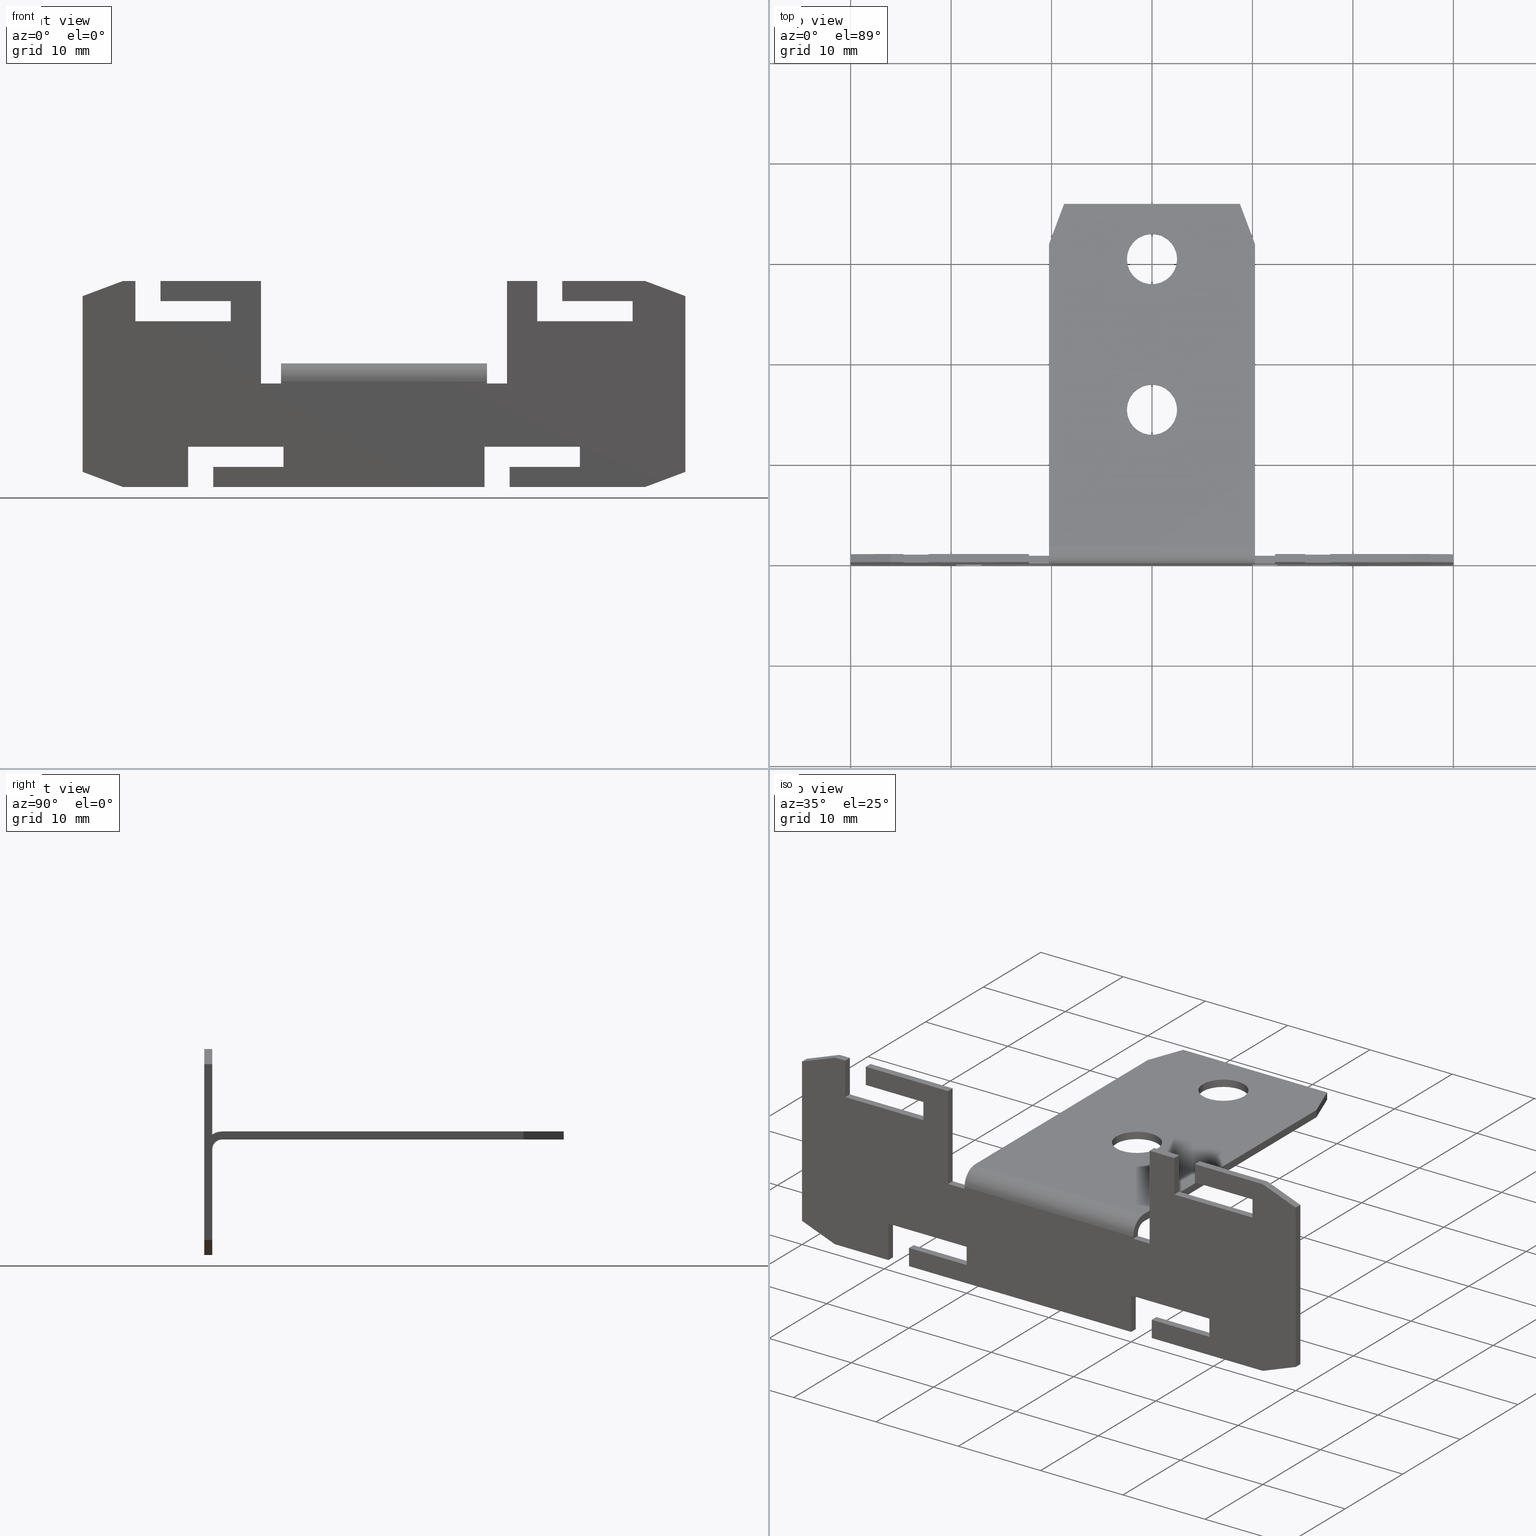
[diagram: canonical four-view strip — front | top / right | iso, engineering-drawing reading convention]
A machine part, canonical four-view strip (front | top / right | iso — engineering-drawing reading convention). The complete STEP part file that produces these views, byte-faithful:
ISO-10303-21;
HEADER;
/* Generated by software containing ST-Developer
 * from STEP Tools, Inc. (www.steptools.com) 
 */

FILE_DESCRIPTION(
/* description */ ('Befestigungslasche neu'),
/* implementation_level */ '2;1');

FILE_NAME(
/* name */ '100002649.stp',
/* time_stamp */ '2024-01-18T08:40:05+01:00',
/* author */ ('selema'),
/* organization */ (''),
/* preprocessor_version */ 'ST-DEVELOPER v20',
/* originating_system */ 'Autodesk Inventor 2024',
/* authorisation */ '');

FILE_SCHEMA (('AUTOMOTIVE_DESIGN { 1 0 10303 214 3 1 1 }'));
ENDSEC;

DATA;
#10=MECHANICAL_DESIGN_GEOMETRIC_PRESENTATION_REPRESENTATION('',(#13),#1660);
#11=SHAPE_REPRESENTATION_RELATIONSHIP('SRR','None',#1667,#12);
#12=ADVANCED_BREP_SHAPE_REPRESENTATION('',(#14),#1659);
#13=STYLED_ITEM('',(#1676),#14);
#14=MANIFOLD_SOLID_BREP('Volumenk\X\F6rper1',#1031);
#15=FACE_BOUND('',#111,.T.);
#16=FACE_BOUND('',#112,.T.);
#17=FACE_BOUND('',#117,.T.);
#18=FACE_BOUND('',#118,.T.);
#19=CIRCLE('',#1080,2.5);
#20=CIRCLE('',#1081,2.5);
#21=CIRCLE('',#1083,2.5);
#22=CIRCLE('',#1084,2.5);
#23=CIRCLE('',#1090,1.8);
#24=CIRCLE('',#1091,1.);
#25=CIRCLE('',#1093,1.);
#26=CIRCLE('',#1094,1.8);
#27=CYLINDRICAL_SURFACE('',#1079,2.5);
#28=CYLINDRICAL_SURFACE('',#1082,2.5);
#29=CYLINDRICAL_SURFACE('',#1096,1.);
#30=CYLINDRICAL_SURFACE('',#1097,1.8);
#31=FACE_OUTER_BOUND('',#81,.T.);
#32=FACE_OUTER_BOUND('',#82,.T.);
#33=FACE_OUTER_BOUND('',#83,.T.);
#34=FACE_OUTER_BOUND('',#84,.T.);
#35=FACE_OUTER_BOUND('',#85,.T.);
#36=FACE_OUTER_BOUND('',#86,.T.);
#37=FACE_OUTER_BOUND('',#87,.T.);
#38=FACE_OUTER_BOUND('',#88,.T.);
#39=FACE_OUTER_BOUND('',#89,.T.);
#40=FACE_OUTER_BOUND('',#90,.T.);
#41=FACE_OUTER_BOUND('',#91,.T.);
#42=FACE_OUTER_BOUND('',#92,.T.);
#43=FACE_OUTER_BOUND('',#93,.T.);
#44=FACE_OUTER_BOUND('',#94,.T.);
#45=FACE_OUTER_BOUND('',#95,.T.);
#46=FACE_OUTER_BOUND('',#96,.T.);
#47=FACE_OUTER_BOUND('',#97,.T.);
#48=FACE_OUTER_BOUND('',#98,.T.);
#49=FACE_OUTER_BOUND('',#99,.T.);
#50=FACE_OUTER_BOUND('',#100,.T.);
#51=FACE_OUTER_BOUND('',#101,.T.);
#52=FACE_OUTER_BOUND('',#102,.T.);
#53=FACE_OUTER_BOUND('',#103,.T.);
#54=FACE_OUTER_BOUND('',#104,.T.);
#55=FACE_OUTER_BOUND('',#105,.T.);
#56=FACE_OUTER_BOUND('',#106,.T.);
#57=FACE_OUTER_BOUND('',#107,.T.);
#58=FACE_OUTER_BOUND('',#108,.T.);
#59=FACE_OUTER_BOUND('',#109,.T.);
#60=FACE_OUTER_BOUND('',#110,.T.);
#61=FACE_OUTER_BOUND('',#113,.T.);
#62=FACE_OUTER_BOUND('',#114,.T.);
#63=FACE_OUTER_BOUND('',#115,.T.);
#64=FACE_OUTER_BOUND('',#116,.T.);
#65=FACE_OUTER_BOUND('',#119,.T.);
#66=FACE_OUTER_BOUND('',#120,.T.);
#67=FACE_OUTER_BOUND('',#121,.T.);
#68=FACE_OUTER_BOUND('',#122,.T.);
#69=FACE_OUTER_BOUND('',#123,.T.);
#70=FACE_OUTER_BOUND('',#124,.T.);
#71=FACE_OUTER_BOUND('',#125,.T.);
#72=FACE_OUTER_BOUND('',#126,.T.);
#73=FACE_OUTER_BOUND('',#127,.T.);
#74=FACE_OUTER_BOUND('',#128,.T.);
#75=FACE_OUTER_BOUND('',#129,.T.);
#76=FACE_OUTER_BOUND('',#130,.T.);
#77=FACE_OUTER_BOUND('',#131,.T.);
#78=FACE_OUTER_BOUND('',#132,.T.);
#79=FACE_OUTER_BOUND('',#133,.T.);
#80=FACE_OUTER_BOUND('',#134,.T.);
#81=EDGE_LOOP('',(#647,#648,#649,#650));
#82=EDGE_LOOP('',(#651,#652,#653,#654));
#83=EDGE_LOOP('',(#655,#656,#657,#658));
#84=EDGE_LOOP('',(#659,#660,#661,#662));
#85=EDGE_LOOP('',(#663,#664,#665,#666));
#86=EDGE_LOOP('',(#667,#668,#669,#670));
#87=EDGE_LOOP('',(#671,#672,#673,#674));
#88=EDGE_LOOP('',(#675,#676,#677,#678));
#89=EDGE_LOOP('',(#679,#680,#681,#682));
#90=EDGE_LOOP('',(#683,#684,#685,#686));
#91=EDGE_LOOP('',(#687,#688,#689,#690));
#92=EDGE_LOOP('',(#691,#692,#693,#694));
#93=EDGE_LOOP('',(#695,#696,#697,#698));
#94=EDGE_LOOP('',(#699,#700,#701,#702));
#95=EDGE_LOOP('',(#703,#704,#705,#706));
#96=EDGE_LOOP('',(#707,#708,#709,#710));
#97=EDGE_LOOP('',(#711,#712,#713,#714));
#98=EDGE_LOOP('',(#715,#716,#717,#718));
#99=EDGE_LOOP('',(#719,#720,#721,#722));
#100=EDGE_LOOP('',(#723,#724,#725,#726));
#101=EDGE_LOOP('',(#727,#728,#729,#730));
#102=EDGE_LOOP('',(#731,#732,#733,#734));
#103=EDGE_LOOP('',(#735,#736,#737,#738,#739,#740,#741,#742,#743,#744,#745,
#746,#747,#748,#749,#750,#751,#752,#753,#754,#755,#756,#757,#758,#759,#760,
#761,#762,#763,#764,#765,#766,#767,#768,#769,#770,#771,#772,#773,#774));
#104=EDGE_LOOP('',(#775,#776,#777,#778));
#105=EDGE_LOOP('',(#779,#780,#781,#782));
#106=EDGE_LOOP('',(#783,#784,#785,#786));
#107=EDGE_LOOP('',(#787,#788,#789,#790));
#108=EDGE_LOOP('',(#791,#792,#793,#794));
#109=EDGE_LOOP('',(#795,#796,#797,#798));
#110=EDGE_LOOP('',(#799,#800,#801,#802,#803,#804));
#111=EDGE_LOOP('',(#805));
#112=EDGE_LOOP('',(#806));
#113=EDGE_LOOP('',(#807,#808,#809,#810));
#114=EDGE_LOOP('',(#811,#812,#813,#814,#815,#816,#817,#818));
#115=EDGE_LOOP('',(#819,#820,#821,#822,#823,#824,#825,#826));
#116=EDGE_LOOP('',(#827,#828,#829,#830,#831,#832));
#117=EDGE_LOOP('',(#833));
#118=EDGE_LOOP('',(#834));
#119=EDGE_LOOP('',(#835,#836,#837,#838));
#120=EDGE_LOOP('',(#839,#840,#841,#842));
#121=EDGE_LOOP('',(#843,#844,#845,#846));
#122=EDGE_LOOP('',(#847,#848,#849,#850));
#123=EDGE_LOOP('',(#851,#852,#853,#854));
#124=EDGE_LOOP('',(#855,#856,#857,#858));
#125=EDGE_LOOP('',(#859,#860,#861,#862));
#126=EDGE_LOOP('',(#863,#864,#865,#866));
#127=EDGE_LOOP('',(#867,#868,#869,#870,#871,#872,#873,#874,#875,#876,#877,
#878,#879,#880,#881,#882,#883,#884,#885,#886,#887,#888,#889,#890,#891,#892,
#893,#894,#895,#896,#897,#898,#899,#900,#901,#902,#903,#904,#905,#906));
#128=EDGE_LOOP('',(#907,#908,#909,#910));
#129=EDGE_LOOP('',(#911,#912,#913,#914));
#130=EDGE_LOOP('',(#915,#916,#917,#918));
#131=EDGE_LOOP('',(#919,#920,#921,#922));
#132=EDGE_LOOP('',(#923,#924,#925,#926));
#133=EDGE_LOOP('',(#927,#928,#929,#930));
#134=EDGE_LOOP('',(#931,#932,#933,#934));
#135=LINE('',#1370,#271);
#136=LINE('',#1372,#272);
#137=LINE('',#1374,#273);
#138=LINE('',#1375,#274);
#139=LINE('',#1379,#275);
#140=LINE('',#1381,#276);
#141=LINE('',#1383,#277);
#142=LINE('',#1384,#278);
#143=LINE('',#1387,#279);
#144=LINE('',#1389,#280);
#145=LINE('',#1390,#281);
#146=LINE('',#1393,#282);
#147=LINE('',#1395,#283);
#148=LINE('',#1396,#284);
#149=LINE('',#1398,#285);
#150=LINE('',#1399,#286);
#151=LINE('',#1403,#287);
#152=LINE('',#1405,#288);
#153=LINE('',#1407,#289);
#154=LINE('',#1408,#290);
#155=LINE('',#1411,#291);
#156=LINE('',#1413,#292);
#157=LINE('',#1414,#293);
#158=LINE('',#1417,#294);
#159=LINE('',#1419,#295);
#160=LINE('',#1420,#296);
#161=LINE('',#1424,#297);
#162=LINE('',#1426,#298);
#163=LINE('',#1428,#299);
#164=LINE('',#1429,#300);
#165=LINE('',#1431,#301);
#166=LINE('',#1432,#302);
#167=LINE('',#1436,#303);
#168=LINE('',#1438,#304);
#169=LINE('',#1440,#305);
#170=LINE('',#1441,#306);
#171=LINE('',#1445,#307);
#172=LINE('',#1447,#308);
#173=LINE('',#1449,#309);
#174=LINE('',#1450,#310);
#175=LINE('',#1453,#311);
#176=LINE('',#1455,#312);
#177=LINE('',#1456,#313);
#178=LINE('',#1459,#314);
#179=LINE('',#1461,#315);
#180=LINE('',#1462,#316);
#181=LINE('',#1464,#317);
#182=LINE('',#1465,#318);
#183=LINE('',#1469,#319);
#184=LINE('',#1471,#320);
#185=LINE('',#1473,#321);
#186=LINE('',#1474,#322);
#187=LINE('',#1477,#323);
#188=LINE('',#1479,#324);
#189=LINE('',#1480,#325);
#190=LINE('',#1483,#326);
#191=LINE('',#1485,#327);
#192=LINE('',#1486,#328);
#193=LINE('',#1490,#329);
#194=LINE('',#1492,#330);
#195=LINE('',#1494,#331);
#196=LINE('',#1495,#332);
#197=LINE('',#1497,#333);
#198=LINE('',#1498,#334);
#199=LINE('',#1501,#335);
#200=LINE('',#1503,#336);
#201=LINE('',#1504,#337);
#202=LINE('',#1507,#338);
#203=LINE('',#1509,#339);
#204=LINE('',#1510,#340);
#205=LINE('',#1513,#341);
#206=LINE('',#1515,#342);
#207=LINE('',#1517,#343);
#208=LINE('',#1519,#344);
#209=LINE('',#1521,#345);
#210=LINE('',#1523,#346);
#211=LINE('',#1525,#347);
#212=LINE('',#1526,#348);
#213=LINE('',#1528,#349);
#214=LINE('',#1530,#350);
#215=LINE('',#1532,#351);
#216=LINE('',#1533,#352);
#217=LINE('',#1534,#353);
#218=LINE('',#1536,#354);
#219=LINE('',#1538,#355);
#220=LINE('',#1540,#356);
#221=LINE('',#1542,#357);
#222=LINE('',#1543,#358);
#223=LINE('',#1546,#359);
#224=LINE('',#1547,#360);
#225=LINE('',#1549,#361);
#226=LINE('',#1554,#362);
#227=LINE('',#1560,#363);
#228=LINE('',#1565,#364);
#229=LINE('',#1567,#365);
#230=LINE('',#1569,#366);
#231=LINE('',#1570,#367);
#232=LINE('',#1573,#368);
#233=LINE('',#1575,#369);
#234=LINE('',#1576,#370);
#235=LINE('',#1579,#371);
#236=LINE('',#1581,#372);
#237=LINE('',#1583,#373);
#238=LINE('',#1584,#374);
#239=LINE('',#1587,#375);
#240=LINE('',#1588,#376);
#241=LINE('',#1592,#377);
#242=LINE('',#1594,#378);
#243=LINE('',#1597,#379);
#244=LINE('',#1600,#380);
#245=LINE('',#1604,#381);
#246=LINE('',#1605,#382);
#247=LINE('',#1608,#383);
#248=LINE('',#1610,#384);
#249=LINE('',#1614,#385);
#250=LINE('',#1615,#386);
#251=LINE('',#1618,#387);
#252=LINE('',#1620,#388);
#253=LINE('',#1621,#389);
#254=LINE('',#1624,#390);
#255=LINE('',#1626,#391);
#256=LINE('',#1627,#392);
#257=LINE('',#1629,#393);
#258=LINE('',#1631,#394);
#259=LINE('',#1633,#395);
#260=LINE('',#1636,#396);
#261=LINE('',#1638,#397);
#262=LINE('',#1640,#398);
#263=LINE('',#1641,#399);
#264=LINE('',#1642,#400);
#265=LINE('',#1644,#401);
#266=LINE('',#1645,#402);
#267=LINE('',#1648,#403);
#268=LINE('',#1649,#404);
#269=LINE('',#1651,#405);
#270=LINE('',#1653,#406);
#271=VECTOR('',#1116,10.);
#272=VECTOR('',#1117,10.);
#273=VECTOR('',#1118,10.);
#274=VECTOR('',#1119,10.);
#275=VECTOR('',#1122,10.);
#276=VECTOR('',#1123,10.);
#277=VECTOR('',#1124,10.);
#278=VECTOR('',#1125,10.);
#279=VECTOR('',#1128,10.);
#280=VECTOR('',#1129,10.);
#281=VECTOR('',#1130,10.);
#282=VECTOR('',#1133,10.);
#283=VECTOR('',#1134,10.);
#284=VECTOR('',#1135,10.);
#285=VECTOR('',#1138,10.);
#286=VECTOR('',#1139,10.);
#287=VECTOR('',#1142,10.);
#288=VECTOR('',#1143,10.);
#289=VECTOR('',#1144,10.);
#290=VECTOR('',#1145,10.);
#291=VECTOR('',#1148,10.);
#292=VECTOR('',#1149,10.);
#293=VECTOR('',#1150,10.);
#294=VECTOR('',#1153,10.);
#295=VECTOR('',#1154,10.);
#296=VECTOR('',#1155,10.);
#297=VECTOR('',#1158,10.);
#298=VECTOR('',#1159,10.);
#299=VECTOR('',#1160,10.);
#300=VECTOR('',#1161,10.);
#301=VECTOR('',#1164,10.);
#302=VECTOR('',#1165,10.);
#303=VECTOR('',#1168,10.);
#304=VECTOR('',#1169,10.);
#305=VECTOR('',#1170,10.);
#306=VECTOR('',#1171,10.);
#307=VECTOR('',#1174,10.);
#308=VECTOR('',#1175,10.);
#309=VECTOR('',#1176,10.);
#310=VECTOR('',#1177,10.);
#311=VECTOR('',#1180,10.);
#312=VECTOR('',#1181,10.);
#313=VECTOR('',#1182,10.);
#314=VECTOR('',#1185,10.);
#315=VECTOR('',#1186,10.);
#316=VECTOR('',#1187,10.);
#317=VECTOR('',#1190,10.);
#318=VECTOR('',#1191,10.);
#319=VECTOR('',#1194,10.);
#320=VECTOR('',#1195,10.);
#321=VECTOR('',#1196,10.);
#322=VECTOR('',#1197,10.);
#323=VECTOR('',#1200,10.);
#324=VECTOR('',#1201,10.);
#325=VECTOR('',#1202,10.);
#326=VECTOR('',#1205,10.);
#327=VECTOR('',#1206,10.);
#328=VECTOR('',#1207,10.);
#329=VECTOR('',#1210,10.);
#330=VECTOR('',#1211,10.);
#331=VECTOR('',#1212,10.);
#332=VECTOR('',#1213,10.);
#333=VECTOR('',#1216,10.);
#334=VECTOR('',#1217,10.);
#335=VECTOR('',#1220,10.);
#336=VECTOR('',#1221,10.);
#337=VECTOR('',#1222,10.);
#338=VECTOR('',#1225,10.);
#339=VECTOR('',#1226,10.);
#340=VECTOR('',#1227,10.);
#341=VECTOR('',#1230,10.);
#342=VECTOR('',#1231,10.);
#343=VECTOR('',#1232,10.);
#344=VECTOR('',#1233,10.);
#345=VECTOR('',#1234,10.);
#346=VECTOR('',#1235,10.);
#347=VECTOR('',#1236,10.);
#348=VECTOR('',#1237,10.);
#349=VECTOR('',#1238,10.);
#350=VECTOR('',#1239,10.);
#351=VECTOR('',#1240,10.);
#352=VECTOR('',#1241,10.);
#353=VECTOR('',#1242,10.);
#354=VECTOR('',#1243,10.);
#355=VECTOR('',#1244,10.);
#356=VECTOR('',#1245,10.);
#357=VECTOR('',#1246,10.);
#358=VECTOR('',#1247,10.);
#359=VECTOR('',#1250,10.);
#360=VECTOR('',#1251,10.);
#361=VECTOR('',#1254,10.);
#362=VECTOR('',#1259,2.5);
#363=VECTOR('',#1266,2.5);
#364=VECTOR('',#1271,10.);
#365=VECTOR('',#1272,10.);
#366=VECTOR('',#1273,10.);
#367=VECTOR('',#1274,10.);
#368=VECTOR('',#1277,10.);
#369=VECTOR('',#1278,10.);
#370=VECTOR('',#1279,10.);
#371=VECTOR('',#1282,10.);
#372=VECTOR('',#1283,10.);
#373=VECTOR('',#1284,10.);
#374=VECTOR('',#1285,10.);
#375=VECTOR('',#1288,10.);
#376=VECTOR('',#1289,10.);
#377=VECTOR('',#1294,10.);
#378=VECTOR('',#1295,10.);
#379=VECTOR('',#1298,10.);
#380=VECTOR('',#1301,10.);
#381=VECTOR('',#1304,10.);
#382=VECTOR('',#1305,10.);
#383=VECTOR('',#1310,10.);
#384=VECTOR('',#1313,10.);
#385=VECTOR('',#1318,10.);
#386=VECTOR('',#1319,10.);
#387=VECTOR('',#1322,10.);
#388=VECTOR('',#1323,10.);
#389=VECTOR('',#1324,10.);
#390=VECTOR('',#1327,10.);
#391=VECTOR('',#1328,10.);
#392=VECTOR('',#1329,10.);
#393=VECTOR('',#1332,10.);
#394=VECTOR('',#1335,10.);
#395=VECTOR('',#1338,10.);
#396=VECTOR('',#1341,10.);
#397=VECTOR('',#1342,10.);
#398=VECTOR('',#1343,10.);
#399=VECTOR('',#1344,10.);
#400=VECTOR('',#1345,10.);
#401=VECTOR('',#1346,10.);
#402=VECTOR('',#1347,10.);
#403=VECTOR('',#1352,10.);
#404=VECTOR('',#1353,10.);
#405=VECTOR('',#1356,10.);
#406=VECTOR('',#1359,10.);
#407=VERTEX_POINT('',#1368);
#408=VERTEX_POINT('',#1369);
#409=VERTEX_POINT('',#1371);
#410=VERTEX_POINT('',#1373);
#411=VERTEX_POINT('',#1377);
#412=VERTEX_POINT('',#1378);
#413=VERTEX_POINT('',#1380);
#414=VERTEX_POINT('',#1382);
#415=VERTEX_POINT('',#1386);
#416=VERTEX_POINT('',#1388);
#417=VERTEX_POINT('',#1392);
#418=VERTEX_POINT('',#1394);
#419=VERTEX_POINT('',#1401);
#420=VERTEX_POINT('',#1402);
#421=VERTEX_POINT('',#1404);
#422=VERTEX_POINT('',#1406);
#423=VERTEX_POINT('',#1410);
#424=VERTEX_POINT('',#1412);
#425=VERTEX_POINT('',#1416);
#426=VERTEX_POINT('',#1418);
#427=VERTEX_POINT('',#1422);
#428=VERTEX_POINT('',#1423);
#429=VERTEX_POINT('',#1425);
#430=VERTEX_POINT('',#1427);
#431=VERTEX_POINT('',#1434);
#432=VERTEX_POINT('',#1435);
#433=VERTEX_POINT('',#1437);
#434=VERTEX_POINT('',#1439);
#435=VERTEX_POINT('',#1443);
#436=VERTEX_POINT('',#1444);
#437=VERTEX_POINT('',#1446);
#438=VERTEX_POINT('',#1448);
#439=VERTEX_POINT('',#1452);
#440=VERTEX_POINT('',#1454);
#441=VERTEX_POINT('',#1458);
#442=VERTEX_POINT('',#1460);
#443=VERTEX_POINT('',#1467);
#444=VERTEX_POINT('',#1468);
#445=VERTEX_POINT('',#1470);
#446=VERTEX_POINT('',#1472);
#447=VERTEX_POINT('',#1476);
#448=VERTEX_POINT('',#1478);
#449=VERTEX_POINT('',#1482);
#450=VERTEX_POINT('',#1484);
#451=VERTEX_POINT('',#1488);
#452=VERTEX_POINT('',#1489);
#453=VERTEX_POINT('',#1491);
#454=VERTEX_POINT('',#1493);
#455=VERTEX_POINT('',#1500);
#456=VERTEX_POINT('',#1502);
#457=VERTEX_POINT('',#1506);
#458=VERTEX_POINT('',#1508);
#459=VERTEX_POINT('',#1512);
#460=VERTEX_POINT('',#1514);
#461=VERTEX_POINT('',#1516);
#462=VERTEX_POINT('',#1518);
#463=VERTEX_POINT('',#1520);
#464=VERTEX_POINT('',#1522);
#465=VERTEX_POINT('',#1524);
#466=VERTEX_POINT('',#1527);
#467=VERTEX_POINT('',#1529);
#468=VERTEX_POINT('',#1531);
#469=VERTEX_POINT('',#1535);
#470=VERTEX_POINT('',#1537);
#471=VERTEX_POINT('',#1539);
#472=VERTEX_POINT('',#1541);
#473=VERTEX_POINT('',#1545);
#474=VERTEX_POINT('',#1551);
#475=VERTEX_POINT('',#1553);
#476=VERTEX_POINT('',#1557);
#477=VERTEX_POINT('',#1559);
#478=VERTEX_POINT('',#1563);
#479=VERTEX_POINT('',#1564);
#480=VERTEX_POINT('',#1566);
#481=VERTEX_POINT('',#1568);
#482=VERTEX_POINT('',#1572);
#483=VERTEX_POINT('',#1574);
#484=VERTEX_POINT('',#1578);
#485=VERTEX_POINT('',#1580);
#486=VERTEX_POINT('',#1582);
#487=VERTEX_POINT('',#1586);
#488=VERTEX_POINT('',#1591);
#489=VERTEX_POINT('',#1593);
#490=VERTEX_POINT('',#1595);
#491=VERTEX_POINT('',#1599);
#492=VERTEX_POINT('',#1601);
#493=VERTEX_POINT('',#1603);
#494=VERTEX_POINT('',#1613);
#495=VERTEX_POINT('',#1617);
#496=VERTEX_POINT('',#1619);
#497=VERTEX_POINT('',#1623);
#498=VERTEX_POINT('',#1625);
#499=VERTEX_POINT('',#1635);
#500=VERTEX_POINT('',#1637);
#501=VERTEX_POINT('',#1639);
#502=VERTEX_POINT('',#1643);
#503=EDGE_CURVE('',#407,#408,#135,.T.);
#504=EDGE_CURVE('',#409,#407,#136,.T.);
#505=EDGE_CURVE('',#410,#409,#137,.T.);
#506=EDGE_CURVE('',#408,#410,#138,.T.);
#507=EDGE_CURVE('',#411,#412,#139,.T.);
#508=EDGE_CURVE('',#413,#411,#140,.T.);
#509=EDGE_CURVE('',#414,#413,#141,.T.);
#510=EDGE_CURVE('',#414,#412,#142,.T.);
#511=EDGE_CURVE('',#412,#415,#143,.T.);
#512=EDGE_CURVE('',#416,#414,#144,.T.);
#513=EDGE_CURVE('',#416,#415,#145,.T.);
#514=EDGE_CURVE('',#415,#417,#146,.T.);
#515=EDGE_CURVE('',#418,#416,#147,.T.);
#516=EDGE_CURVE('',#418,#417,#148,.T.);
#517=EDGE_CURVE('',#417,#407,#149,.T.);
#518=EDGE_CURVE('',#409,#418,#150,.T.);
#519=EDGE_CURVE('',#419,#420,#151,.T.);
#520=EDGE_CURVE('',#421,#419,#152,.T.);
#521=EDGE_CURVE('',#422,#421,#153,.T.);
#522=EDGE_CURVE('',#422,#420,#154,.T.);
#523=EDGE_CURVE('',#420,#423,#155,.T.);
#524=EDGE_CURVE('',#424,#422,#156,.T.);
#525=EDGE_CURVE('',#424,#423,#157,.T.);
#526=EDGE_CURVE('',#423,#425,#158,.T.);
#527=EDGE_CURVE('',#426,#424,#159,.T.);
#528=EDGE_CURVE('',#425,#426,#160,.T.);
#529=EDGE_CURVE('',#427,#428,#161,.T.);
#530=EDGE_CURVE('',#429,#427,#162,.T.);
#531=EDGE_CURVE('',#430,#429,#163,.T.);
#532=EDGE_CURVE('',#430,#428,#164,.T.);
#533=EDGE_CURVE('',#428,#419,#165,.T.);
#534=EDGE_CURVE('',#421,#430,#166,.T.);
#535=EDGE_CURVE('',#431,#432,#167,.T.);
#536=EDGE_CURVE('',#433,#431,#168,.T.);
#537=EDGE_CURVE('',#434,#433,#169,.T.);
#538=EDGE_CURVE('',#432,#434,#170,.T.);
#539=EDGE_CURVE('',#435,#436,#171,.T.);
#540=EDGE_CURVE('',#437,#435,#172,.T.);
#541=EDGE_CURVE('',#438,#437,#173,.T.);
#542=EDGE_CURVE('',#438,#436,#174,.T.);
#543=EDGE_CURVE('',#436,#439,#175,.T.);
#544=EDGE_CURVE('',#440,#438,#176,.T.);
#545=EDGE_CURVE('',#440,#439,#177,.T.);
#546=EDGE_CURVE('',#439,#441,#178,.T.);
#547=EDGE_CURVE('',#442,#440,#179,.T.);
#548=EDGE_CURVE('',#442,#441,#180,.T.);
#549=EDGE_CURVE('',#441,#431,#181,.T.);
#550=EDGE_CURVE('',#433,#442,#182,.T.);
#551=EDGE_CURVE('',#443,#444,#183,.T.);
#552=EDGE_CURVE('',#445,#443,#184,.T.);
#553=EDGE_CURVE('',#446,#445,#185,.T.);
#554=EDGE_CURVE('',#446,#444,#186,.T.);
#555=EDGE_CURVE('',#444,#447,#187,.T.);
#556=EDGE_CURVE('',#448,#446,#188,.T.);
#557=EDGE_CURVE('',#448,#447,#189,.T.);
#558=EDGE_CURVE('',#447,#449,#190,.T.);
#559=EDGE_CURVE('',#450,#448,#191,.T.);
#560=EDGE_CURVE('',#449,#450,#192,.T.);
#561=EDGE_CURVE('',#451,#452,#193,.T.);
#562=EDGE_CURVE('',#453,#451,#194,.T.);
#563=EDGE_CURVE('',#454,#453,#195,.T.);
#564=EDGE_CURVE('',#454,#452,#196,.T.);
#565=EDGE_CURVE('',#452,#443,#197,.T.);
#566=EDGE_CURVE('',#445,#454,#198,.T.);
#567=EDGE_CURVE('',#455,#411,#199,.T.);
#568=EDGE_CURVE('',#455,#456,#200,.T.);
#569=EDGE_CURVE('',#413,#456,#201,.T.);
#570=EDGE_CURVE('',#435,#457,#202,.T.);
#571=EDGE_CURVE('',#457,#458,#203,.T.);
#572=EDGE_CURVE('',#458,#437,#204,.T.);
#573=EDGE_CURVE('',#456,#459,#205,.T.);
#574=EDGE_CURVE('',#459,#460,#206,.T.);
#575=EDGE_CURVE('',#460,#461,#207,.T.);
#576=EDGE_CURVE('',#461,#462,#208,.T.);
#577=EDGE_CURVE('',#462,#463,#209,.T.);
#578=EDGE_CURVE('',#463,#464,#210,.T.);
#579=EDGE_CURVE('',#464,#465,#211,.T.);
#580=EDGE_CURVE('',#434,#465,#212,.T.);
#581=EDGE_CURVE('',#458,#466,#213,.T.);
#582=EDGE_CURVE('',#467,#466,#214,.T.);
#583=EDGE_CURVE('',#467,#468,#215,.T.);
#584=EDGE_CURVE('',#468,#426,#216,.T.);
#585=EDGE_CURVE('',#429,#450,#217,.T.);
#586=EDGE_CURVE('',#453,#469,#218,.T.);
#587=EDGE_CURVE('',#469,#470,#219,.T.);
#588=EDGE_CURVE('',#470,#471,#220,.T.);
#589=EDGE_CURVE('',#471,#472,#221,.T.);
#590=EDGE_CURVE('',#472,#410,#222,.T.);
#591=EDGE_CURVE('',#451,#473,#223,.T.);
#592=EDGE_CURVE('',#473,#469,#224,.T.);
#593=EDGE_CURVE('',#427,#449,#225,.T.);
#594=EDGE_CURVE('',#474,#474,#19,.T.);
#595=EDGE_CURVE('',#474,#475,#226,.T.);
#596=EDGE_CURVE('',#475,#475,#20,.T.);
#597=EDGE_CURVE('',#476,#476,#21,.T.);
#598=EDGE_CURVE('',#476,#477,#227,.T.);
#599=EDGE_CURVE('',#477,#477,#22,.T.);
#600=EDGE_CURVE('',#478,#479,#228,.T.);
#601=EDGE_CURVE('',#479,#480,#229,.T.);
#602=EDGE_CURVE('',#480,#481,#230,.T.);
#603=EDGE_CURVE('',#481,#478,#231,.T.);
#604=EDGE_CURVE('',#481,#482,#232,.T.);
#605=EDGE_CURVE('',#483,#482,#233,.T.);
#606=EDGE_CURVE('',#483,#478,#234,.T.);
#607=EDGE_CURVE('',#484,#480,#235,.T.);
#608=EDGE_CURVE('',#485,#484,#236,.T.);
#609=EDGE_CURVE('',#486,#485,#237,.T.);
#610=EDGE_CURVE('',#482,#486,#238,.T.);
#611=EDGE_CURVE('',#487,#483,#239,.T.);
#612=EDGE_CURVE('',#486,#487,#240,.T.);
#613=EDGE_CURVE('',#461,#485,#23,.T.);
#614=EDGE_CURVE('',#488,#460,#241,.T.);
#615=EDGE_CURVE('',#489,#488,#242,.T.);
#616=EDGE_CURVE('',#489,#490,#24,.T.);
#617=EDGE_CURVE('',#490,#487,#243,.T.);
#618=EDGE_CURVE('',#479,#491,#244,.T.);
#619=EDGE_CURVE('',#492,#491,#25,.T.);
#620=EDGE_CURVE('',#493,#492,#245,.T.);
#621=EDGE_CURVE('',#493,#463,#246,.T.);
#622=EDGE_CURVE('',#462,#484,#26,.T.);
#623=EDGE_CURVE('',#491,#490,#247,.T.);
#624=EDGE_CURVE('',#492,#489,#248,.T.);
#625=EDGE_CURVE('',#494,#457,#249,.T.);
#626=EDGE_CURVE('',#466,#494,#250,.T.);
#627=EDGE_CURVE('',#495,#467,#251,.T.);
#628=EDGE_CURVE('',#496,#495,#252,.T.);
#629=EDGE_CURVE('',#468,#496,#253,.T.);
#630=EDGE_CURVE('',#497,#464,#254,.T.);
#631=EDGE_CURVE('',#498,#497,#255,.T.);
#632=EDGE_CURVE('',#465,#498,#256,.T.);
#633=EDGE_CURVE('',#497,#493,#257,.T.);
#634=EDGE_CURVE('',#496,#425,#258,.T.);
#635=EDGE_CURVE('',#494,#495,#259,.T.);
#636=EDGE_CURVE('',#408,#499,#260,.T.);
#637=EDGE_CURVE('',#499,#500,#261,.T.);
#638=EDGE_CURVE('',#500,#501,#262,.T.);
#639=EDGE_CURVE('',#501,#473,#263,.T.);
#640=EDGE_CURVE('',#498,#432,#264,.T.);
#641=EDGE_CURVE('',#488,#502,#265,.T.);
#642=EDGE_CURVE('',#502,#455,#266,.T.);
#643=EDGE_CURVE('',#500,#471,#267,.T.);
#644=EDGE_CURVE('',#472,#499,#268,.T.);
#645=EDGE_CURVE('',#470,#501,#269,.T.);
#646=EDGE_CURVE('',#502,#459,#270,.T.);
#647=ORIENTED_EDGE('',*,*,#503,.F.);
#648=ORIENTED_EDGE('',*,*,#504,.F.);
#649=ORIENTED_EDGE('',*,*,#505,.F.);
#650=ORIENTED_EDGE('',*,*,#506,.F.);
#651=ORIENTED_EDGE('',*,*,#507,.F.);
#652=ORIENTED_EDGE('',*,*,#508,.F.);
#653=ORIENTED_EDGE('',*,*,#509,.F.);
#654=ORIENTED_EDGE('',*,*,#510,.T.);
#655=ORIENTED_EDGE('',*,*,#511,.F.);
#656=ORIENTED_EDGE('',*,*,#510,.F.);
#657=ORIENTED_EDGE('',*,*,#512,.F.);
#658=ORIENTED_EDGE('',*,*,#513,.T.);
#659=ORIENTED_EDGE('',*,*,#514,.F.);
#660=ORIENTED_EDGE('',*,*,#513,.F.);
#661=ORIENTED_EDGE('',*,*,#515,.F.);
#662=ORIENTED_EDGE('',*,*,#516,.T.);
#663=ORIENTED_EDGE('',*,*,#517,.F.);
#664=ORIENTED_EDGE('',*,*,#516,.F.);
#665=ORIENTED_EDGE('',*,*,#518,.F.);
#666=ORIENTED_EDGE('',*,*,#504,.T.);
#667=ORIENTED_EDGE('',*,*,#519,.F.);
#668=ORIENTED_EDGE('',*,*,#520,.F.);
#669=ORIENTED_EDGE('',*,*,#521,.F.);
#670=ORIENTED_EDGE('',*,*,#522,.T.);
#671=ORIENTED_EDGE('',*,*,#523,.F.);
#672=ORIENTED_EDGE('',*,*,#522,.F.);
#673=ORIENTED_EDGE('',*,*,#524,.F.);
#674=ORIENTED_EDGE('',*,*,#525,.T.);
#675=ORIENTED_EDGE('',*,*,#526,.F.);
#676=ORIENTED_EDGE('',*,*,#525,.F.);
#677=ORIENTED_EDGE('',*,*,#527,.F.);
#678=ORIENTED_EDGE('',*,*,#528,.F.);
#679=ORIENTED_EDGE('',*,*,#529,.F.);
#680=ORIENTED_EDGE('',*,*,#530,.F.);
#681=ORIENTED_EDGE('',*,*,#531,.F.);
#682=ORIENTED_EDGE('',*,*,#532,.T.);
#683=ORIENTED_EDGE('',*,*,#533,.F.);
#684=ORIENTED_EDGE('',*,*,#532,.F.);
#685=ORIENTED_EDGE('',*,*,#534,.F.);
#686=ORIENTED_EDGE('',*,*,#520,.T.);
#687=ORIENTED_EDGE('',*,*,#535,.F.);
#688=ORIENTED_EDGE('',*,*,#536,.F.);
#689=ORIENTED_EDGE('',*,*,#537,.F.);
#690=ORIENTED_EDGE('',*,*,#538,.F.);
#691=ORIENTED_EDGE('',*,*,#539,.F.);
#692=ORIENTED_EDGE('',*,*,#540,.F.);
#693=ORIENTED_EDGE('',*,*,#541,.F.);
#694=ORIENTED_EDGE('',*,*,#542,.T.);
#695=ORIENTED_EDGE('',*,*,#543,.F.);
#696=ORIENTED_EDGE('',*,*,#542,.F.);
#697=ORIENTED_EDGE('',*,*,#544,.F.);
#698=ORIENTED_EDGE('',*,*,#545,.T.);
#699=ORIENTED_EDGE('',*,*,#546,.F.);
#700=ORIENTED_EDGE('',*,*,#545,.F.);
#701=ORIENTED_EDGE('',*,*,#547,.F.);
#702=ORIENTED_EDGE('',*,*,#548,.T.);
#703=ORIENTED_EDGE('',*,*,#549,.F.);
#704=ORIENTED_EDGE('',*,*,#548,.F.);
#705=ORIENTED_EDGE('',*,*,#550,.F.);
#706=ORIENTED_EDGE('',*,*,#536,.T.);
#707=ORIENTED_EDGE('',*,*,#551,.F.);
#708=ORIENTED_EDGE('',*,*,#552,.F.);
#709=ORIENTED_EDGE('',*,*,#553,.F.);
#710=ORIENTED_EDGE('',*,*,#554,.T.);
#711=ORIENTED_EDGE('',*,*,#555,.F.);
#712=ORIENTED_EDGE('',*,*,#554,.F.);
#713=ORIENTED_EDGE('',*,*,#556,.F.);
#714=ORIENTED_EDGE('',*,*,#557,.T.);
#715=ORIENTED_EDGE('',*,*,#558,.F.);
#716=ORIENTED_EDGE('',*,*,#557,.F.);
#717=ORIENTED_EDGE('',*,*,#559,.F.);
#718=ORIENTED_EDGE('',*,*,#560,.F.);
#719=ORIENTED_EDGE('',*,*,#561,.F.);
#720=ORIENTED_EDGE('',*,*,#562,.F.);
#721=ORIENTED_EDGE('',*,*,#563,.F.);
#722=ORIENTED_EDGE('',*,*,#564,.T.);
#723=ORIENTED_EDGE('',*,*,#565,.F.);
#724=ORIENTED_EDGE('',*,*,#564,.F.);
#725=ORIENTED_EDGE('',*,*,#566,.F.);
#726=ORIENTED_EDGE('',*,*,#552,.T.);
#727=ORIENTED_EDGE('',*,*,#508,.T.);
#728=ORIENTED_EDGE('',*,*,#567,.F.);
#729=ORIENTED_EDGE('',*,*,#568,.T.);
#730=ORIENTED_EDGE('',*,*,#569,.F.);
#731=ORIENTED_EDGE('',*,*,#540,.T.);
#732=ORIENTED_EDGE('',*,*,#570,.T.);
#733=ORIENTED_EDGE('',*,*,#571,.T.);
#734=ORIENTED_EDGE('',*,*,#572,.T.);
#735=ORIENTED_EDGE('',*,*,#505,.T.);
#736=ORIENTED_EDGE('',*,*,#518,.T.);
#737=ORIENTED_EDGE('',*,*,#515,.T.);
#738=ORIENTED_EDGE('',*,*,#512,.T.);
#739=ORIENTED_EDGE('',*,*,#509,.T.);
#740=ORIENTED_EDGE('',*,*,#569,.T.);
#741=ORIENTED_EDGE('',*,*,#573,.T.);
#742=ORIENTED_EDGE('',*,*,#574,.T.);
#743=ORIENTED_EDGE('',*,*,#575,.T.);
#744=ORIENTED_EDGE('',*,*,#576,.T.);
#745=ORIENTED_EDGE('',*,*,#577,.T.);
#746=ORIENTED_EDGE('',*,*,#578,.T.);
#747=ORIENTED_EDGE('',*,*,#579,.T.);
#748=ORIENTED_EDGE('',*,*,#580,.F.);
#749=ORIENTED_EDGE('',*,*,#537,.T.);
#750=ORIENTED_EDGE('',*,*,#550,.T.);
#751=ORIENTED_EDGE('',*,*,#547,.T.);
#752=ORIENTED_EDGE('',*,*,#544,.T.);
#753=ORIENTED_EDGE('',*,*,#541,.T.);
#754=ORIENTED_EDGE('',*,*,#572,.F.);
#755=ORIENTED_EDGE('',*,*,#581,.T.);
#756=ORIENTED_EDGE('',*,*,#582,.F.);
#757=ORIENTED_EDGE('',*,*,#583,.T.);
#758=ORIENTED_EDGE('',*,*,#584,.T.);
#759=ORIENTED_EDGE('',*,*,#527,.T.);
#760=ORIENTED_EDGE('',*,*,#524,.T.);
#761=ORIENTED_EDGE('',*,*,#521,.T.);
#762=ORIENTED_EDGE('',*,*,#534,.T.);
#763=ORIENTED_EDGE('',*,*,#531,.T.);
#764=ORIENTED_EDGE('',*,*,#585,.T.);
#765=ORIENTED_EDGE('',*,*,#559,.T.);
#766=ORIENTED_EDGE('',*,*,#556,.T.);
#767=ORIENTED_EDGE('',*,*,#553,.T.);
#768=ORIENTED_EDGE('',*,*,#566,.T.);
#769=ORIENTED_EDGE('',*,*,#563,.T.);
#770=ORIENTED_EDGE('',*,*,#586,.T.);
#771=ORIENTED_EDGE('',*,*,#587,.T.);
#772=ORIENTED_EDGE('',*,*,#588,.T.);
#773=ORIENTED_EDGE('',*,*,#589,.T.);
#774=ORIENTED_EDGE('',*,*,#590,.T.);
#775=ORIENTED_EDGE('',*,*,#562,.T.);
#776=ORIENTED_EDGE('',*,*,#591,.T.);
#777=ORIENTED_EDGE('',*,*,#592,.T.);
#778=ORIENTED_EDGE('',*,*,#586,.F.);
#779=ORIENTED_EDGE('',*,*,#530,.T.);
#780=ORIENTED_EDGE('',*,*,#593,.T.);
#781=ORIENTED_EDGE('',*,*,#560,.T.);
#782=ORIENTED_EDGE('',*,*,#585,.F.);
#783=ORIENTED_EDGE('',*,*,#594,.F.);
#784=ORIENTED_EDGE('',*,*,#595,.T.);
#785=ORIENTED_EDGE('',*,*,#596,.F.);
#786=ORIENTED_EDGE('',*,*,#595,.F.);
#787=ORIENTED_EDGE('',*,*,#597,.F.);
#788=ORIENTED_EDGE('',*,*,#598,.T.);
#789=ORIENTED_EDGE('',*,*,#599,.F.);
#790=ORIENTED_EDGE('',*,*,#598,.F.);
#791=ORIENTED_EDGE('',*,*,#600,.T.);
#792=ORIENTED_EDGE('',*,*,#601,.T.);
#793=ORIENTED_EDGE('',*,*,#602,.T.);
#794=ORIENTED_EDGE('',*,*,#603,.T.);
#795=ORIENTED_EDGE('',*,*,#603,.F.);
#796=ORIENTED_EDGE('',*,*,#604,.T.);
#797=ORIENTED_EDGE('',*,*,#605,.F.);
#798=ORIENTED_EDGE('',*,*,#606,.T.);
#799=ORIENTED_EDGE('',*,*,#602,.F.);
#800=ORIENTED_EDGE('',*,*,#607,.F.);
#801=ORIENTED_EDGE('',*,*,#608,.F.);
#802=ORIENTED_EDGE('',*,*,#609,.F.);
#803=ORIENTED_EDGE('',*,*,#610,.F.);
#804=ORIENTED_EDGE('',*,*,#604,.F.);
#805=ORIENTED_EDGE('',*,*,#594,.T.);
#806=ORIENTED_EDGE('',*,*,#597,.T.);
#807=ORIENTED_EDGE('',*,*,#611,.T.);
#808=ORIENTED_EDGE('',*,*,#605,.T.);
#809=ORIENTED_EDGE('',*,*,#610,.T.);
#810=ORIENTED_EDGE('',*,*,#612,.T.);
#811=ORIENTED_EDGE('',*,*,#612,.F.);
#812=ORIENTED_EDGE('',*,*,#609,.T.);
#813=ORIENTED_EDGE('',*,*,#613,.F.);
#814=ORIENTED_EDGE('',*,*,#575,.F.);
#815=ORIENTED_EDGE('',*,*,#614,.F.);
#816=ORIENTED_EDGE('',*,*,#615,.F.);
#817=ORIENTED_EDGE('',*,*,#616,.T.);
#818=ORIENTED_EDGE('',*,*,#617,.T.);
#819=ORIENTED_EDGE('',*,*,#601,.F.);
#820=ORIENTED_EDGE('',*,*,#618,.T.);
#821=ORIENTED_EDGE('',*,*,#619,.F.);
#822=ORIENTED_EDGE('',*,*,#620,.F.);
#823=ORIENTED_EDGE('',*,*,#621,.T.);
#824=ORIENTED_EDGE('',*,*,#577,.F.);
#825=ORIENTED_EDGE('',*,*,#622,.T.);
#826=ORIENTED_EDGE('',*,*,#607,.T.);
#827=ORIENTED_EDGE('',*,*,#600,.F.);
#828=ORIENTED_EDGE('',*,*,#606,.F.);
#829=ORIENTED_EDGE('',*,*,#611,.F.);
#830=ORIENTED_EDGE('',*,*,#617,.F.);
#831=ORIENTED_EDGE('',*,*,#623,.F.);
#832=ORIENTED_EDGE('',*,*,#618,.F.);
#833=ORIENTED_EDGE('',*,*,#596,.T.);
#834=ORIENTED_EDGE('',*,*,#599,.T.);
#835=ORIENTED_EDGE('',*,*,#623,.T.);
#836=ORIENTED_EDGE('',*,*,#616,.F.);
#837=ORIENTED_EDGE('',*,*,#624,.F.);
#838=ORIENTED_EDGE('',*,*,#619,.T.);
#839=ORIENTED_EDGE('',*,*,#608,.T.);
#840=ORIENTED_EDGE('',*,*,#622,.F.);
#841=ORIENTED_EDGE('',*,*,#576,.F.);
#842=ORIENTED_EDGE('',*,*,#613,.T.);
#843=ORIENTED_EDGE('',*,*,#581,.F.);
#844=ORIENTED_EDGE('',*,*,#571,.F.);
#845=ORIENTED_EDGE('',*,*,#625,.F.);
#846=ORIENTED_EDGE('',*,*,#626,.F.);
#847=ORIENTED_EDGE('',*,*,#583,.F.);
#848=ORIENTED_EDGE('',*,*,#627,.F.);
#849=ORIENTED_EDGE('',*,*,#628,.F.);
#850=ORIENTED_EDGE('',*,*,#629,.F.);
#851=ORIENTED_EDGE('',*,*,#579,.F.);
#852=ORIENTED_EDGE('',*,*,#630,.F.);
#853=ORIENTED_EDGE('',*,*,#631,.F.);
#854=ORIENTED_EDGE('',*,*,#632,.F.);
#855=ORIENTED_EDGE('',*,*,#578,.F.);
#856=ORIENTED_EDGE('',*,*,#621,.F.);
#857=ORIENTED_EDGE('',*,*,#633,.F.);
#858=ORIENTED_EDGE('',*,*,#630,.T.);
#859=ORIENTED_EDGE('',*,*,#528,.T.);
#860=ORIENTED_EDGE('',*,*,#584,.F.);
#861=ORIENTED_EDGE('',*,*,#629,.T.);
#862=ORIENTED_EDGE('',*,*,#634,.T.);
#863=ORIENTED_EDGE('',*,*,#626,.T.);
#864=ORIENTED_EDGE('',*,*,#635,.T.);
#865=ORIENTED_EDGE('',*,*,#627,.T.);
#866=ORIENTED_EDGE('',*,*,#582,.T.);
#867=ORIENTED_EDGE('',*,*,#503,.T.);
#868=ORIENTED_EDGE('',*,*,#636,.T.);
#869=ORIENTED_EDGE('',*,*,#637,.T.);
#870=ORIENTED_EDGE('',*,*,#638,.T.);
#871=ORIENTED_EDGE('',*,*,#639,.T.);
#872=ORIENTED_EDGE('',*,*,#591,.F.);
#873=ORIENTED_EDGE('',*,*,#561,.T.);
#874=ORIENTED_EDGE('',*,*,#565,.T.);
#875=ORIENTED_EDGE('',*,*,#551,.T.);
#876=ORIENTED_EDGE('',*,*,#555,.T.);
#877=ORIENTED_EDGE('',*,*,#558,.T.);
#878=ORIENTED_EDGE('',*,*,#593,.F.);
#879=ORIENTED_EDGE('',*,*,#529,.T.);
#880=ORIENTED_EDGE('',*,*,#533,.T.);
#881=ORIENTED_EDGE('',*,*,#519,.T.);
#882=ORIENTED_EDGE('',*,*,#523,.T.);
#883=ORIENTED_EDGE('',*,*,#526,.T.);
#884=ORIENTED_EDGE('',*,*,#634,.F.);
#885=ORIENTED_EDGE('',*,*,#628,.T.);
#886=ORIENTED_EDGE('',*,*,#635,.F.);
#887=ORIENTED_EDGE('',*,*,#625,.T.);
#888=ORIENTED_EDGE('',*,*,#570,.F.);
#889=ORIENTED_EDGE('',*,*,#539,.T.);
#890=ORIENTED_EDGE('',*,*,#543,.T.);
#891=ORIENTED_EDGE('',*,*,#546,.T.);
#892=ORIENTED_EDGE('',*,*,#549,.T.);
#893=ORIENTED_EDGE('',*,*,#535,.T.);
#894=ORIENTED_EDGE('',*,*,#640,.F.);
#895=ORIENTED_EDGE('',*,*,#631,.T.);
#896=ORIENTED_EDGE('',*,*,#633,.T.);
#897=ORIENTED_EDGE('',*,*,#620,.T.);
#898=ORIENTED_EDGE('',*,*,#624,.T.);
#899=ORIENTED_EDGE('',*,*,#615,.T.);
#900=ORIENTED_EDGE('',*,*,#641,.T.);
#901=ORIENTED_EDGE('',*,*,#642,.T.);
#902=ORIENTED_EDGE('',*,*,#567,.T.);
#903=ORIENTED_EDGE('',*,*,#507,.T.);
#904=ORIENTED_EDGE('',*,*,#511,.T.);
#905=ORIENTED_EDGE('',*,*,#514,.T.);
#906=ORIENTED_EDGE('',*,*,#517,.T.);
#907=ORIENTED_EDGE('',*,*,#538,.T.);
#908=ORIENTED_EDGE('',*,*,#580,.T.);
#909=ORIENTED_EDGE('',*,*,#632,.T.);
#910=ORIENTED_EDGE('',*,*,#640,.T.);
#911=ORIENTED_EDGE('',*,*,#589,.F.);
#912=ORIENTED_EDGE('',*,*,#643,.F.);
#913=ORIENTED_EDGE('',*,*,#637,.F.);
#914=ORIENTED_EDGE('',*,*,#644,.F.);
#915=ORIENTED_EDGE('',*,*,#587,.F.);
#916=ORIENTED_EDGE('',*,*,#592,.F.);
#917=ORIENTED_EDGE('',*,*,#639,.F.);
#918=ORIENTED_EDGE('',*,*,#645,.F.);
#919=ORIENTED_EDGE('',*,*,#574,.F.);
#920=ORIENTED_EDGE('',*,*,#646,.F.);
#921=ORIENTED_EDGE('',*,*,#641,.F.);
#922=ORIENTED_EDGE('',*,*,#614,.T.);
#923=ORIENTED_EDGE('',*,*,#573,.F.);
#924=ORIENTED_EDGE('',*,*,#568,.F.);
#925=ORIENTED_EDGE('',*,*,#642,.F.);
#926=ORIENTED_EDGE('',*,*,#646,.T.);
#927=ORIENTED_EDGE('',*,*,#643,.T.);
#928=ORIENTED_EDGE('',*,*,#588,.F.);
#929=ORIENTED_EDGE('',*,*,#645,.T.);
#930=ORIENTED_EDGE('',*,*,#638,.F.);
#931=ORIENTED_EDGE('',*,*,#506,.T.);
#932=ORIENTED_EDGE('',*,*,#590,.F.);
#933=ORIENTED_EDGE('',*,*,#644,.T.);
#934=ORIENTED_EDGE('',*,*,#636,.F.);
#935=PLANE('',#1054);
#936=PLANE('',#1055);
#937=PLANE('',#1056);
#938=PLANE('',#1057);
#939=PLANE('',#1058);
#940=PLANE('',#1059);
#941=PLANE('',#1060);
#942=PLANE('',#1061);
#943=PLANE('',#1062);
#944=PLANE('',#1063);
#945=PLANE('',#1064);
#946=PLANE('',#1065);
#947=PLANE('',#1066);
#948=PLANE('',#1067);
#949=PLANE('',#1068);
#950=PLANE('',#1069);
#951=PLANE('',#1070);
#952=PLANE('',#1071);
#953=PLANE('',#1072);
#954=PLANE('',#1073);
#955=PLANE('',#1074);
#956=PLANE('',#1075);
#957=PLANE('',#1076);
#958=PLANE('',#1077);
#959=PLANE('',#1078);
#960=PLANE('',#1085);
#961=PLANE('',#1086);
#962=PLANE('',#1087);
#963=PLANE('',#1088);
#964=PLANE('',#1089);
#965=PLANE('',#1092);
#966=PLANE('',#1095);
#967=PLANE('',#1098);
#968=PLANE('',#1099);
#969=PLANE('',#1100);
#970=PLANE('',#1101);
#971=PLANE('',#1102);
#972=PLANE('',#1103);
#973=PLANE('',#1104);
#974=PLANE('',#1105);
#975=PLANE('',#1106);
#976=PLANE('',#1107);
#977=PLANE('',#1108);
#978=PLANE('',#1109);
#979=PLANE('',#1110);
#980=PLANE('',#1111);
#981=ADVANCED_FACE('',(#31),#935,.F.);
#982=ADVANCED_FACE('',(#32),#936,.F.);
#983=ADVANCED_FACE('',(#33),#937,.F.);
#984=ADVANCED_FACE('',(#34),#938,.F.);
#985=ADVANCED_FACE('',(#35),#939,.F.);
#986=ADVANCED_FACE('',(#36),#940,.F.);
#987=ADVANCED_FACE('',(#37),#941,.F.);
#988=ADVANCED_FACE('',(#38),#942,.F.);
#989=ADVANCED_FACE('',(#39),#943,.F.);
#990=ADVANCED_FACE('',(#40),#944,.F.);
#991=ADVANCED_FACE('',(#41),#945,.F.);
#992=ADVANCED_FACE('',(#42),#946,.F.);
#993=ADVANCED_FACE('',(#43),#947,.F.);
#994=ADVANCED_FACE('',(#44),#948,.F.);
#995=ADVANCED_FACE('',(#45),#949,.F.);
#996=ADVANCED_FACE('',(#46),#950,.F.);
#997=ADVANCED_FACE('',(#47),#951,.F.);
#998=ADVANCED_FACE('',(#48),#952,.F.);
#999=ADVANCED_FACE('',(#49),#953,.F.);
#1000=ADVANCED_FACE('',(#50),#954,.F.);
#1001=ADVANCED_FACE('',(#51),#955,.T.);
#1002=ADVANCED_FACE('',(#52),#956,.F.);
#1003=ADVANCED_FACE('',(#53),#957,.T.);
#1004=ADVANCED_FACE('',(#54),#958,.F.);
#1005=ADVANCED_FACE('',(#55),#959,.F.);
#1006=ADVANCED_FACE('',(#56),#27,.F.);
#1007=ADVANCED_FACE('',(#57),#28,.F.);
#1008=ADVANCED_FACE('',(#58),#960,.T.);
#1009=ADVANCED_FACE('',(#59),#961,.T.);
#1010=ADVANCED_FACE('',(#60,#15,#16),#962,.T.);
#1011=ADVANCED_FACE('',(#61),#963,.T.);
#1012=ADVANCED_FACE('',(#62),#964,.T.);
#1013=ADVANCED_FACE('',(#63),#965,.T.);
#1014=ADVANCED_FACE('',(#64,#17,#18),#966,.F.);
#1015=ADVANCED_FACE('',(#65),#29,.F.);
#1016=ADVANCED_FACE('',(#66),#30,.T.);
#1017=ADVANCED_FACE('',(#67),#967,.T.);
#1018=ADVANCED_FACE('',(#68),#968,.T.);
#1019=ADVANCED_FACE('',(#69),#969,.T.);
#1020=ADVANCED_FACE('',(#70),#970,.T.);
#1021=ADVANCED_FACE('',(#71),#971,.F.);
#1022=ADVANCED_FACE('',(#72),#972,.F.);
#1023=ADVANCED_FACE('',(#73),#973,.T.);
#1024=ADVANCED_FACE('',(#74),#974,.F.);
#1025=ADVANCED_FACE('',(#75),#975,.F.);
#1026=ADVANCED_FACE('',(#76),#976,.F.);
#1027=ADVANCED_FACE('',(#77),#977,.F.);
#1028=ADVANCED_FACE('',(#78),#978,.F.);
#1029=ADVANCED_FACE('',(#79),#979,.T.);
#1030=ADVANCED_FACE('',(#80),#980,.T.);
#1031=CLOSED_SHELL('',(#981,#982,#983,#984,#985,#986,#987,#988,#989,#990,
#991,#992,#993,#994,#995,#996,#997,#998,#999,#1000,#1001,#1002,#1003,#1004,
#1005,#1006,#1007,#1008,#1009,#1010,#1011,#1012,#1013,#1014,#1015,#1016,
#1017,#1018,#1019,#1020,#1021,#1022,#1023,#1024,#1025,#1026,#1027,#1028,
#1029,#1030));
#1032=DERIVED_UNIT_ELEMENT(#1035,1.);
#1033=DERIVED_UNIT_ELEMENT(#1662,-3.);
#1034=DIMENSIONAL_EXPONENTS(0.,1.,0.,0.,0.,0.,0.);
#1035=(
CONVERSION_BASED_UNIT('gram',#1037)
MASS_UNIT()
NAMED_UNIT(#1034)
);
#1036=(
MASS_UNIT()
NAMED_UNIT(*)
SI_UNIT(.KILO.,.GRAM.)
);
#1037=MASS_MEASURE_WITH_UNIT(MASS_MEASURE(0.001),#1036);
#1038=DERIVED_UNIT((#1032,#1033));
#1039=MEASURE_REPRESENTATION_ITEM('density measure',
POSITIVE_RATIO_MEASURE(8.03),#1038);
#1040=PROPERTY_DEFINITION_REPRESENTATION(#1045,#1042);
#1041=PROPERTY_DEFINITION_REPRESENTATION(#1046,#1043);
#1042=REPRESENTATION('material name',(#1044),#1659);
#1043=REPRESENTATION('density',(#1039),#1659);
#1044=DESCRIPTIVE_REPRESENTATION_ITEM(
'Nichtrostender Stahl (austenitisch)',
'Nichtrostender Stahl (austenitisch)');
#1045=PROPERTY_DEFINITION('material property','material name',#1669);
#1046=PROPERTY_DEFINITION('material property','density of part',#1669);
#1047=DATE_TIME_ROLE('creation_date');
#1048=APPLIED_DATE_AND_TIME_ASSIGNMENT(#1049,#1047,(#1669));
#1049=DATE_AND_TIME(#1050,#1051);
#1050=CALENDAR_DATE(2007,4,1);
#1051=LOCAL_TIME(0,0,0.,#1052);
#1052=COORDINATED_UNIVERSAL_TIME_OFFSET(0,0,.BEHIND.);
#1053=AXIS2_PLACEMENT_3D('',#1366,#1112,#1113);
#1054=AXIS2_PLACEMENT_3D('',#1367,#1114,#1115);
#1055=AXIS2_PLACEMENT_3D('',#1376,#1120,#1121);
#1056=AXIS2_PLACEMENT_3D('',#1385,#1126,#1127);
#1057=AXIS2_PLACEMENT_3D('',#1391,#1131,#1132);
#1058=AXIS2_PLACEMENT_3D('',#1397,#1136,#1137);
#1059=AXIS2_PLACEMENT_3D('',#1400,#1140,#1141);
#1060=AXIS2_PLACEMENT_3D('',#1409,#1146,#1147);
#1061=AXIS2_PLACEMENT_3D('',#1415,#1151,#1152);
#1062=AXIS2_PLACEMENT_3D('',#1421,#1156,#1157);
#1063=AXIS2_PLACEMENT_3D('',#1430,#1162,#1163);
#1064=AXIS2_PLACEMENT_3D('',#1433,#1166,#1167);
#1065=AXIS2_PLACEMENT_3D('',#1442,#1172,#1173);
#1066=AXIS2_PLACEMENT_3D('',#1451,#1178,#1179);
#1067=AXIS2_PLACEMENT_3D('',#1457,#1183,#1184);
#1068=AXIS2_PLACEMENT_3D('',#1463,#1188,#1189);
#1069=AXIS2_PLACEMENT_3D('',#1466,#1192,#1193);
#1070=AXIS2_PLACEMENT_3D('',#1475,#1198,#1199);
#1071=AXIS2_PLACEMENT_3D('',#1481,#1203,#1204);
#1072=AXIS2_PLACEMENT_3D('',#1487,#1208,#1209);
#1073=AXIS2_PLACEMENT_3D('',#1496,#1214,#1215);
#1074=AXIS2_PLACEMENT_3D('',#1499,#1218,#1219);
#1075=AXIS2_PLACEMENT_3D('',#1505,#1223,#1224);
#1076=AXIS2_PLACEMENT_3D('',#1511,#1228,#1229);
#1077=AXIS2_PLACEMENT_3D('',#1544,#1248,#1249);
#1078=AXIS2_PLACEMENT_3D('',#1548,#1252,#1253);
#1079=AXIS2_PLACEMENT_3D('',#1550,#1255,#1256);
#1080=AXIS2_PLACEMENT_3D('',#1552,#1257,#1258);
#1081=AXIS2_PLACEMENT_3D('',#1555,#1260,#1261);
#1082=AXIS2_PLACEMENT_3D('',#1556,#1262,#1263);
#1083=AXIS2_PLACEMENT_3D('',#1558,#1264,#1265);
#1084=AXIS2_PLACEMENT_3D('',#1561,#1267,#1268);
#1085=AXIS2_PLACEMENT_3D('',#1562,#1269,#1270);
#1086=AXIS2_PLACEMENT_3D('',#1571,#1275,#1276);
#1087=AXIS2_PLACEMENT_3D('',#1577,#1280,#1281);
#1088=AXIS2_PLACEMENT_3D('',#1585,#1286,#1287);
#1089=AXIS2_PLACEMENT_3D('',#1589,#1290,#1291);
#1090=AXIS2_PLACEMENT_3D('',#1590,#1292,#1293);
#1091=AXIS2_PLACEMENT_3D('',#1596,#1296,#1297);
#1092=AXIS2_PLACEMENT_3D('',#1598,#1299,#1300);
#1093=AXIS2_PLACEMENT_3D('',#1602,#1302,#1303);
#1094=AXIS2_PLACEMENT_3D('',#1606,#1306,#1307);
#1095=AXIS2_PLACEMENT_3D('',#1607,#1308,#1309);
#1096=AXIS2_PLACEMENT_3D('',#1609,#1311,#1312);
#1097=AXIS2_PLACEMENT_3D('',#1611,#1314,#1315);
#1098=AXIS2_PLACEMENT_3D('',#1612,#1316,#1317);
#1099=AXIS2_PLACEMENT_3D('',#1616,#1320,#1321);
#1100=AXIS2_PLACEMENT_3D('',#1622,#1325,#1326);
#1101=AXIS2_PLACEMENT_3D('',#1628,#1330,#1331);
#1102=AXIS2_PLACEMENT_3D('',#1630,#1333,#1334);
#1103=AXIS2_PLACEMENT_3D('',#1632,#1336,#1337);
#1104=AXIS2_PLACEMENT_3D('',#1634,#1339,#1340);
#1105=AXIS2_PLACEMENT_3D('',#1646,#1348,#1349);
#1106=AXIS2_PLACEMENT_3D('',#1647,#1350,#1351);
#1107=AXIS2_PLACEMENT_3D('',#1650,#1354,#1355);
#1108=AXIS2_PLACEMENT_3D('',#1652,#1357,#1358);
#1109=AXIS2_PLACEMENT_3D('',#1654,#1360,#1361);
#1110=AXIS2_PLACEMENT_3D('',#1655,#1362,#1363);
#1111=AXIS2_PLACEMENT_3D('',#1656,#1364,#1365);
#1112=DIRECTION('axis',(0.,0.,1.));
#1113=DIRECTION('refdir',(1.,0.,0.));
#1114=DIRECTION('center_axis',(1.,0.,0.));
#1115=DIRECTION('ref_axis',(0.,0.,-1.));
#1116=DIRECTION('',(0.,0.,1.));
#1117=DIRECTION('',(0.,1.,0.));
#1118=DIRECTION('',(0.,0.,-1.));
#1119=DIRECTION('',(0.,-1.,0.));
#1120=DIRECTION('center_axis',(-1.,0.,0.));
#1121=DIRECTION('ref_axis',(0.,0.,1.));
#1122=DIRECTION('',(0.,0.,-1.));
#1123=DIRECTION('',(0.,1.,0.));
#1124=DIRECTION('',(0.,0.,1.));
#1125=DIRECTION('',(0.,1.,0.));
#1126=DIRECTION('center_axis',(-1.1686558153949E-16,0.,-1.));
#1127=DIRECTION('ref_axis',(-1.,0.,1.1686558153949E-16));
#1128=DIRECTION('',(1.,0.,-1.1686558153949E-16));
#1129=DIRECTION('',(-1.,0.,1.1686558153949E-16));
#1130=DIRECTION('',(0.,1.,0.));
#1131=DIRECTION('center_axis',(1.,0.,0.));
#1132=DIRECTION('ref_axis',(0.,0.,-1.));
#1133=DIRECTION('',(0.,0.,1.));
#1134=DIRECTION('',(0.,0.,-1.));
#1135=DIRECTION('',(0.,1.,0.));
#1136=DIRECTION('center_axis',(0.,0.,1.));
#1137=DIRECTION('ref_axis',(1.,0.,0.));
#1138=DIRECTION('',(-1.,0.,0.));
#1139=DIRECTION('',(1.,0.,0.));
#1140=DIRECTION('center_axis',(1.,0.,0.));
#1141=DIRECTION('ref_axis',(0.,0.,-1.));
#1142=DIRECTION('',(0.,0.,1.));
#1143=DIRECTION('',(0.,1.,0.));
#1144=DIRECTION('',(0.,0.,-1.));
#1145=DIRECTION('',(0.,1.,0.));
#1146=DIRECTION('center_axis',(2.3373116307898E-16,0.,1.));
#1147=DIRECTION('ref_axis',(1.,0.,-2.3373116307898E-16));
#1148=DIRECTION('',(-1.,0.,2.3373116307898E-16));
#1149=DIRECTION('',(1.,0.,-2.3373116307898E-16));
#1150=DIRECTION('',(0.,1.,0.));
#1151=DIRECTION('center_axis',(-1.,0.,0.));
#1152=DIRECTION('ref_axis',(0.,0.,1.));
#1153=DIRECTION('',(0.,0.,-1.));
#1154=DIRECTION('',(0.,0.,1.));
#1155=DIRECTION('',(0.,-1.,0.));
#1156=DIRECTION('center_axis',(1.,0.,1.11022302462516E-15));
#1157=DIRECTION('ref_axis',(1.11022302462516E-15,0.,-1.));
#1158=DIRECTION('',(-1.11022302462516E-15,0.,1.));
#1159=DIRECTION('',(0.,1.,0.));
#1160=DIRECTION('',(1.11022302462516E-15,0.,-1.));
#1161=DIRECTION('',(0.,1.,0.));
#1162=DIRECTION('center_axis',(0.,0.,-1.));
#1163=DIRECTION('ref_axis',(-1.,0.,0.));
#1164=DIRECTION('',(1.,0.,0.));
#1165=DIRECTION('',(-1.,0.,0.));
#1166=DIRECTION('center_axis',(1.,0.,0.));
#1167=DIRECTION('ref_axis',(0.,0.,-1.));
#1168=DIRECTION('',(0.,0.,1.));
#1169=DIRECTION('',(0.,1.,0.));
#1170=DIRECTION('',(0.,0.,-1.));
#1171=DIRECTION('',(0.,-1.,0.));
#1172=DIRECTION('center_axis',(-1.,0.,0.));
#1173=DIRECTION('ref_axis',(0.,0.,1.));
#1174=DIRECTION('',(0.,0.,-1.));
#1175=DIRECTION('',(0.,1.,0.));
#1176=DIRECTION('',(0.,0.,1.));
#1177=DIRECTION('',(0.,1.,0.));
#1178=DIRECTION('center_axis',(-1.1686558153949E-16,0.,-1.));
#1179=DIRECTION('ref_axis',(-1.,0.,1.1686558153949E-16));
#1180=DIRECTION('',(1.,0.,-1.1686558153949E-16));
#1181=DIRECTION('',(-1.,0.,1.1686558153949E-16));
#1182=DIRECTION('',(0.,1.,0.));
#1183=DIRECTION('center_axis',(1.,0.,0.));
#1184=DIRECTION('ref_axis',(0.,0.,-1.));
#1185=DIRECTION('',(0.,0.,1.));
#1186=DIRECTION('',(0.,0.,-1.));
#1187=DIRECTION('',(0.,1.,0.));
#1188=DIRECTION('center_axis',(0.,0.,1.));
#1189=DIRECTION('ref_axis',(1.,0.,0.));
#1190=DIRECTION('',(-1.,0.,0.));
#1191=DIRECTION('',(1.,0.,0.));
#1192=DIRECTION('center_axis',(1.,0.,0.));
#1193=DIRECTION('ref_axis',(0.,0.,-1.));
#1194=DIRECTION('',(0.,0.,1.));
#1195=DIRECTION('',(0.,1.,0.));
#1196=DIRECTION('',(0.,0.,-1.));
#1197=DIRECTION('',(0.,1.,0.));
#1198=DIRECTION('center_axis',(1.1686558153949E-16,0.,1.));
#1199=DIRECTION('ref_axis',(1.,0.,-1.1686558153949E-16));
#1200=DIRECTION('',(-1.,0.,1.1686558153949E-16));
#1201=DIRECTION('',(1.,0.,-1.1686558153949E-16));
#1202=DIRECTION('',(0.,1.,0.));
#1203=DIRECTION('center_axis',(-1.,0.,0.));
#1204=DIRECTION('ref_axis',(0.,0.,1.));
#1205=DIRECTION('',(0.,0.,-1.));
#1206=DIRECTION('',(0.,0.,1.));
#1207=DIRECTION('',(0.,-1.,0.));
#1208=DIRECTION('center_axis',(1.,0.,0.));
#1209=DIRECTION('ref_axis',(0.,0.,-1.));
#1210=DIRECTION('',(0.,0.,1.));
#1211=DIRECTION('',(0.,1.,0.));
#1212=DIRECTION('',(0.,0.,-1.));
#1213=DIRECTION('',(0.,1.,0.));
#1214=DIRECTION('center_axis',(0.,0.,-1.));
#1215=DIRECTION('ref_axis',(-1.,0.,0.));
#1216=DIRECTION('',(1.,0.,0.));
#1217=DIRECTION('',(-1.,0.,0.));
#1218=DIRECTION('center_axis',(0.,0.,1.));
#1219=DIRECTION('ref_axis',(1.,0.,0.));
#1220=DIRECTION('',(1.,0.,0.));
#1221=DIRECTION('',(0.,-1.,0.));
#1222=DIRECTION('',(-1.,0.,0.));
#1223=DIRECTION('center_axis',(0.,0.,-1.));
#1224=DIRECTION('ref_axis',(-1.,0.,0.));
#1225=DIRECTION('',(-1.,0.,0.));
#1226=DIRECTION('',(0.,-1.,0.));
#1227=DIRECTION('',(1.,0.,0.));
#1228=DIRECTION('center_axis',(0.,-1.,0.));
#1229=DIRECTION('ref_axis',(0.,0.,-1.));
#1230=DIRECTION('',(-4.35381578284375E-16,0.,-1.));
#1231=DIRECTION('',(-1.,0.,1.11022302462516E-15));
#1232=DIRECTION('',(0.,0.,1.));
#1233=DIRECTION('',(-1.,0.,0.));
#1234=DIRECTION('',(0.,0.,-1.));
#1235=DIRECTION('',(-1.,0.,-1.11022302462516E-15));
#1236=DIRECTION('',(-4.35381578284375E-16,0.,1.));
#1237=DIRECTION('',(1.,0.,0.));
#1238=DIRECTION('',(-0.936329177569044,0.,-0.351123441588393));
#1239=DIRECTION('',(0.,0.,1.));
#1240=DIRECTION('',(0.936329177569045,0.,-0.351123441588391));
#1241=DIRECTION('',(1.,0.,0.));
#1242=DIRECTION('',(1.,0.,0.));
#1243=DIRECTION('',(1.,0.,0.));
#1244=DIRECTION('',(0.936329177569045,0.,0.351123441588391));
#1245=DIRECTION('',(0.,0.,1.));
#1246=DIRECTION('',(-0.936329177569044,0.,0.351123441588393));
#1247=DIRECTION('',(-1.,0.,0.));
#1248=DIRECTION('center_axis',(0.,0.,1.));
#1249=DIRECTION('ref_axis',(1.,0.,0.));
#1250=DIRECTION('',(1.,0.,0.));
#1251=DIRECTION('',(0.,-1.,0.));
#1252=DIRECTION('center_axis',(0.,0.,1.));
#1253=DIRECTION('ref_axis',(1.,0.,0.));
#1254=DIRECTION('',(1.,0.,0.));
#1255=DIRECTION('center_axis',(-2.02079181766502E-18,-6.24944303840174E-17,
1.));
#1256=DIRECTION('ref_axis',(1.,1.51640217997582E-15,2.02079181766512E-18));
#1257=DIRECTION('center_axis',(2.02079181766502E-18,6.24944303840174E-17,
-1.));
#1258=DIRECTION('ref_axis',(1.,1.51640217997582E-15,2.02079181766512E-18));
#1259=DIRECTION('',(2.02079181766502E-18,6.24944303840174E-17,-1.));
#1260=DIRECTION('center_axis',(-2.02079181766501E-18,-6.24944303840174E-17,
1.));
#1261=DIRECTION('ref_axis',(1.,1.51640217997582E-15,2.02079181766512E-18));
#1262=DIRECTION('center_axis',(-2.02079181766502E-18,-6.24944303840174E-17,
1.));
#1263=DIRECTION('ref_axis',(1.,1.51640217997582E-15,2.02079181766512E-18));
#1264=DIRECTION('center_axis',(2.02079181766502E-18,6.24944303840174E-17,
-1.));
#1265=DIRECTION('ref_axis',(1.,1.51640217997582E-15,2.02079181766512E-18));
#1266=DIRECTION('',(2.02079181766502E-18,6.24944303840174E-17,-1.));
#1267=DIRECTION('center_axis',(-2.02079181766501E-18,-6.24944303840174E-17,
1.));
#1268=DIRECTION('ref_axis',(1.,1.51640217997582E-15,2.02079181766512E-18));
#1269=DIRECTION('center_axis',(-0.936329177569045,0.351123441588392,0.));
#1270=DIRECTION('ref_axis',(0.,0.,1.));
#1271=DIRECTION('',(-0.351123441588392,-0.936329177569045,-5.92249059818651E-17));
#1272=DIRECTION('',(0.,0.,1.));
#1273=DIRECTION('',(0.351123441588392,0.936329177569045,5.92249059818651E-17));
#1274=DIRECTION('',(0.,0.,-1.));
#1275=DIRECTION('center_axis',(0.,1.,0.));
#1276=DIRECTION('ref_axis',(0.,0.,1.));
#1277=DIRECTION('',(1.,0.,0.));
#1278=DIRECTION('',(0.,0.,1.));
#1279=DIRECTION('',(-1.,0.,0.));
#1280=DIRECTION('center_axis',(-2.02079181766502E-18,-6.24944303840174E-17,
1.));
#1281=DIRECTION('ref_axis',(1.,0.,2.02079181766502E-18));
#1282=DIRECTION('',(0.,1.,6.12323399573677E-17));
#1283=DIRECTION('',(-1.,-1.52479014291346E-15,-1.52479014291346E-15));
#1284=DIRECTION('',(0.,-1.,-6.12323399573677E-17));
#1285=DIRECTION('',(0.351123441588392,-0.936329177569044,-5.78058112263607E-17));
#1286=DIRECTION('center_axis',(0.936329177569045,0.351123441588392,0.));
#1287=DIRECTION('ref_axis',(0.,0.,-1.));
#1288=DIRECTION('',(-0.351123441588392,0.936329177569044,5.78058112263607E-17));
#1289=DIRECTION('',(0.,0.,-1.));
#1290=DIRECTION('center_axis',(1.,0.,0.));
#1291=DIRECTION('ref_axis',(0.,0.,-1.));
#1292=DIRECTION('center_axis',(-1.,0.,0.));
#1293=DIRECTION('ref_axis',(1.2335811384724E-15,-1.,0.));
#1294=DIRECTION('',(0.,-1.,0.));
#1295=DIRECTION('',(0.,0.,-1.));
#1296=DIRECTION('center_axis',(-1.,0.,0.));
#1297=DIRECTION('ref_axis',(1.2335811384724E-15,-1.,0.));
#1298=DIRECTION('',(0.,1.,6.12323399573677E-17));
#1299=DIRECTION('center_axis',(-1.,0.,0.));
#1300=DIRECTION('ref_axis',(0.,0.,1.));
#1301=DIRECTION('',(0.,-1.,-6.12323399573677E-17));
#1302=DIRECTION('center_axis',(-1.,0.,0.));
#1303=DIRECTION('ref_axis',(1.2335811384724E-15,-1.,0.));
#1304=DIRECTION('',(0.,0.,1.));
#1305=DIRECTION('',(0.,-1.,0.));
#1306=DIRECTION('center_axis',(-1.,0.,0.));
#1307=DIRECTION('ref_axis',(1.2335811384724E-15,-1.,0.));
#1308=DIRECTION('center_axis',(-2.02079181766501E-18,-6.24944303840174E-17,
1.));
#1309=DIRECTION('ref_axis',(1.,0.,2.02079181766501E-18));
#1310=DIRECTION('',(1.,1.52479014291346E-15,1.52479014291346E-15));
#1311=DIRECTION('center_axis',(-1.,0.,0.));
#1312=DIRECTION('ref_axis',(1.2335811384724E-15,-1.,0.));
#1313=DIRECTION('',(1.,0.,0.));
#1314=DIRECTION('center_axis',(-1.,0.,0.));
#1315=DIRECTION('ref_axis',(1.2335811384724E-15,-1.,0.));
#1316=DIRECTION('center_axis',(-0.351123441588393,0.,0.936329177569044));
#1317=DIRECTION('ref_axis',(0.936329177569044,0.,0.351123441588393));
#1318=DIRECTION('',(0.936329177569044,0.,0.351123441588393));
#1319=DIRECTION('',(0.,1.,0.));
#1320=DIRECTION('center_axis',(-0.351123441588391,0.,-0.936329177569045));
#1321=DIRECTION('ref_axis',(-0.936329177569045,0.,0.351123441588391));
#1322=DIRECTION('',(0.,-1.,0.));
#1323=DIRECTION('',(-0.936329177569045,0.,0.351123441588391));
#1324=DIRECTION('',(0.,1.,0.));
#1325=DIRECTION('center_axis',(1.,0.,4.35381578284375E-16));
#1326=DIRECTION('ref_axis',(4.35381578284375E-16,0.,-1.));
#1327=DIRECTION('',(0.,-1.,0.));
#1328=DIRECTION('',(4.35381578284375E-16,0.,-1.));
#1329=DIRECTION('',(0.,1.,0.));
#1330=DIRECTION('center_axis',(-1.11022302462516E-15,0.,1.));
#1331=DIRECTION('ref_axis',(1.,0.,1.11022302462516E-15));
#1332=DIRECTION('',(1.,0.,1.11022302462516E-15));
#1333=DIRECTION('center_axis',(0.,0.,1.));
#1334=DIRECTION('ref_axis',(1.,0.,0.));
#1335=DIRECTION('',(1.,0.,0.));
#1336=DIRECTION('center_axis',(1.,0.,0.));
#1337=DIRECTION('ref_axis',(0.,0.,-1.));
#1338=DIRECTION('',(0.,0.,-1.));
#1339=DIRECTION('center_axis',(0.,1.,0.));
#1340=DIRECTION('ref_axis',(0.,0.,1.));
#1341=DIRECTION('',(1.,0.,0.));
#1342=DIRECTION('',(0.936329177569044,0.,-0.351123441588393));
#1343=DIRECTION('',(0.,0.,-1.));
#1344=DIRECTION('',(-0.936329177569045,0.,-0.351123441588391));
#1345=DIRECTION('',(-1.,0.,0.));
#1346=DIRECTION('',(1.,0.,-1.11022302462516E-15));
#1347=DIRECTION('',(4.35381578284375E-16,0.,1.));
#1348=DIRECTION('center_axis',(0.,0.,-1.));
#1349=DIRECTION('ref_axis',(-1.,0.,0.));
#1350=DIRECTION('center_axis',(-0.351123441588393,0.,-0.936329177569044));
#1351=DIRECTION('ref_axis',(-0.936329177569044,0.,0.351123441588393));
#1352=DIRECTION('',(0.,-1.,0.));
#1353=DIRECTION('',(0.,1.,0.));
#1354=DIRECTION('center_axis',(-0.351123441588391,0.,0.936329177569045));
#1355=DIRECTION('ref_axis',(0.936329177569045,0.,0.351123441588391));
#1356=DIRECTION('',(0.,1.,0.));
#1357=DIRECTION('center_axis',(-1.11022302462516E-15,0.,-1.));
#1358=DIRECTION('ref_axis',(-1.,0.,1.11022302462516E-15));
#1359=DIRECTION('',(0.,-1.,0.));
#1360=DIRECTION('center_axis',(1.,0.,-4.35381578284375E-16));
#1361=DIRECTION('ref_axis',(-4.35381578284375E-16,0.,-1.));
#1362=DIRECTION('center_axis',(1.,0.,0.));
#1363=DIRECTION('ref_axis',(0.,0.,-1.));
#1364=DIRECTION('center_axis',(0.,0.,1.));
#1365=DIRECTION('ref_axis',(1.,0.,0.));
#1366=CARTESIAN_POINT('',(0.,0.,0.));
#1367=CARTESIAN_POINT('Origin',(17.75,0.,8.25));
#1368=CARTESIAN_POINT('',(17.75,0.799999999999992,8.25));
#1369=CARTESIAN_POINT('',(17.75,0.799999999999992,10.25));
#1370=CARTESIAN_POINT('',(17.75,0.799999999999992,4.125));
#1371=CARTESIAN_POINT('',(17.75,0.,8.25));
#1372=CARTESIAN_POINT('',(17.75,0.,8.25));
#1373=CARTESIAN_POINT('',(17.75,0.,10.25));
#1374=CARTESIAN_POINT('',(17.75,-7.7715611723761E-15,4.125));
#1375=CARTESIAN_POINT('',(17.75,0.199999999999996,10.25));
#1376=CARTESIAN_POINT('Origin',(15.25,0.,10.25));
#1377=CARTESIAN_POINT('',(15.25,0.799999999999992,10.25));
#1378=CARTESIAN_POINT('',(15.25,0.799999999999992,6.25));
#1379=CARTESIAN_POINT('',(15.25,0.799999999999992,5.125));
#1380=CARTESIAN_POINT('',(15.25,0.,10.25));
#1381=CARTESIAN_POINT('',(15.25,0.199999999999996,10.25));
#1382=CARTESIAN_POINT('',(15.25,0.,6.25));
#1383=CARTESIAN_POINT('',(15.25,-7.7715611723761E-15,5.125));
#1384=CARTESIAN_POINT('',(15.25,0.,6.25));
#1385=CARTESIAN_POINT('Origin',(15.25,0.,6.25));
#1386=CARTESIAN_POINT('',(24.75,0.799999999999992,6.25));
#1387=CARTESIAN_POINT('',(7.625,0.799999999999992,6.25));
#1388=CARTESIAN_POINT('',(24.75,0.,6.25));
#1389=CARTESIAN_POINT('',(22.625,-7.7715611723761E-15,6.25));
#1390=CARTESIAN_POINT('',(24.75,0.,6.25));
#1391=CARTESIAN_POINT('Origin',(24.75,0.,6.25));
#1392=CARTESIAN_POINT('',(24.75,0.799999999999992,8.25));
#1393=CARTESIAN_POINT('',(24.75,0.799999999999992,3.125));
#1394=CARTESIAN_POINT('',(24.75,0.,8.25));
#1395=CARTESIAN_POINT('',(24.75,-7.7715611723761E-15,3.125));
#1396=CARTESIAN_POINT('',(24.75,0.,8.25));
#1397=CARTESIAN_POINT('Origin',(24.75,0.,8.25));
#1398=CARTESIAN_POINT('',(12.375,0.799999999999992,8.25));
#1399=CARTESIAN_POINT('',(27.375,-7.7715611723761E-15,8.25));
#1400=CARTESIAN_POINT('Origin',(-10.,0.,-8.25));
#1401=CARTESIAN_POINT('',(-10.,0.799999999999992,-8.25));
#1402=CARTESIAN_POINT('',(-10.,0.799999999999992,-6.25));
#1403=CARTESIAN_POINT('',(-10.,0.799999999999992,-4.125));
#1404=CARTESIAN_POINT('',(-10.,0.,-8.25));
#1405=CARTESIAN_POINT('',(-10.,0.,-8.25));
#1406=CARTESIAN_POINT('',(-10.,0.,-6.25));
#1407=CARTESIAN_POINT('',(-10.,-7.7715611723761E-15,-4.125));
#1408=CARTESIAN_POINT('',(-10.,0.,-6.25));
#1409=CARTESIAN_POINT('Origin',(-10.,0.,-6.25));
#1410=CARTESIAN_POINT('',(-19.5,0.799999999999992,-6.25));
#1411=CARTESIAN_POINT('',(-5.,0.799999999999992,-6.25));
#1412=CARTESIAN_POINT('',(-19.5,0.,-6.25));
#1413=CARTESIAN_POINT('',(10.,-7.7715611723761E-15,-6.25));
#1414=CARTESIAN_POINT('',(-19.5,0.,-6.25));
#1415=CARTESIAN_POINT('Origin',(-19.5,0.,-6.25));
#1416=CARTESIAN_POINT('',(-19.5,0.799999999999992,-10.25));
#1417=CARTESIAN_POINT('',(-19.5,0.799999999999992,-3.125));
#1418=CARTESIAN_POINT('',(-19.5,0.,-10.25));
#1419=CARTESIAN_POINT('',(-19.5,-7.7715611723761E-15,-3.125));
#1420=CARTESIAN_POINT('',(-19.5,0.199999999999996,-10.25));
#1421=CARTESIAN_POINT('Origin',(-17.,0.,-10.25));
#1422=CARTESIAN_POINT('',(-17.,0.799999999999992,-10.25));
#1423=CARTESIAN_POINT('',(-17.,0.799999999999992,-8.25));
#1424=CARTESIAN_POINT('',(-17.,0.799999999999992,-5.12500000000001));
#1425=CARTESIAN_POINT('',(-17.,0.,-10.25));
#1426=CARTESIAN_POINT('',(-17.,0.199999999999996,-10.25));
#1427=CARTESIAN_POINT('',(-17.,0.,-8.25));
#1428=CARTESIAN_POINT('',(-17.,-7.7715611723761E-15,-5.12500000000002));
#1429=CARTESIAN_POINT('',(-17.,0.,-8.25));
#1430=CARTESIAN_POINT('Origin',(-17.,0.,-8.25));
#1431=CARTESIAN_POINT('',(-8.5,0.799999999999992,-8.25));
#1432=CARTESIAN_POINT('',(6.5,-7.7715611723761E-15,-8.25));
#1433=CARTESIAN_POINT('Origin',(-22.25,0.,8.25));
#1434=CARTESIAN_POINT('',(-22.25,0.799999999999992,8.25));
#1435=CARTESIAN_POINT('',(-22.25,0.799999999999992,10.25));
#1436=CARTESIAN_POINT('',(-22.25,0.799999999999992,4.125));
#1437=CARTESIAN_POINT('',(-22.25,0.,8.25));
#1438=CARTESIAN_POINT('',(-22.25,0.,8.25));
#1439=CARTESIAN_POINT('',(-22.25,0.,10.25));
#1440=CARTESIAN_POINT('',(-22.25,-7.7715611723761E-15,4.125));
#1441=CARTESIAN_POINT('',(-22.25,0.199999999999996,10.25));
#1442=CARTESIAN_POINT('Origin',(-24.75,0.,10.25));
#1443=CARTESIAN_POINT('',(-24.75,0.799999999999992,10.25));
#1444=CARTESIAN_POINT('',(-24.75,0.799999999999992,6.25));
#1445=CARTESIAN_POINT('',(-24.75,0.799999999999992,5.125));
#1446=CARTESIAN_POINT('',(-24.75,0.,10.25));
#1447=CARTESIAN_POINT('',(-24.75,0.199999999999996,10.25));
#1448=CARTESIAN_POINT('',(-24.75,0.,6.25));
#1449=CARTESIAN_POINT('',(-24.75,-7.7715611723761E-15,5.125));
#1450=CARTESIAN_POINT('',(-24.75,0.,6.25));
#1451=CARTESIAN_POINT('Origin',(-24.75,0.,6.25));
#1452=CARTESIAN_POINT('',(-15.25,0.799999999999992,6.25));
#1453=CARTESIAN_POINT('',(-12.375,0.799999999999992,6.25));
#1454=CARTESIAN_POINT('',(-15.25,0.,6.25));
#1455=CARTESIAN_POINT('',(2.625,-7.7715611723761E-15,6.25));
#1456=CARTESIAN_POINT('',(-15.25,0.,6.25));
#1457=CARTESIAN_POINT('Origin',(-15.25,0.,6.25));
#1458=CARTESIAN_POINT('',(-15.25,0.799999999999992,8.25));
#1459=CARTESIAN_POINT('',(-15.25,0.799999999999992,3.125));
#1460=CARTESIAN_POINT('',(-15.25,0.,8.25));
#1461=CARTESIAN_POINT('',(-15.25,-7.7715611723761E-15,3.125));
#1462=CARTESIAN_POINT('',(-15.25,0.,8.25));
#1463=CARTESIAN_POINT('Origin',(-15.25,0.,8.25));
#1464=CARTESIAN_POINT('',(-7.625,0.799999999999992,8.25));
#1465=CARTESIAN_POINT('',(7.375,-7.7715611723761E-15,8.25));
#1466=CARTESIAN_POINT('Origin',(19.5,0.,-8.25));
#1467=CARTESIAN_POINT('',(19.5,0.799999999999992,-8.25));
#1468=CARTESIAN_POINT('',(19.5,0.799999999999992,-6.25));
#1469=CARTESIAN_POINT('',(19.5,0.799999999999992,-4.125));
#1470=CARTESIAN_POINT('',(19.5,0.,-8.25));
#1471=CARTESIAN_POINT('',(19.5,0.,-8.25));
#1472=CARTESIAN_POINT('',(19.5,0.,-6.25));
#1473=CARTESIAN_POINT('',(19.5,-7.7715611723761E-15,-4.125));
#1474=CARTESIAN_POINT('',(19.5,0.,-6.25));
#1475=CARTESIAN_POINT('Origin',(19.5,0.,-6.25));
#1476=CARTESIAN_POINT('',(10.,0.799999999999992,-6.25));
#1477=CARTESIAN_POINT('',(9.75,0.799999999999992,-6.25));
#1478=CARTESIAN_POINT('',(10.,0.,-6.25));
#1479=CARTESIAN_POINT('',(24.75,-7.7715611723761E-15,-6.25));
#1480=CARTESIAN_POINT('',(10.,0.,-6.25));
#1481=CARTESIAN_POINT('Origin',(10.,0.,-6.25));
#1482=CARTESIAN_POINT('',(10.,0.799999999999992,-10.25));
#1483=CARTESIAN_POINT('',(10.,0.799999999999992,-3.125));
#1484=CARTESIAN_POINT('',(10.,0.,-10.25));
#1485=CARTESIAN_POINT('',(10.,-7.7715611723761E-15,-3.125));
#1486=CARTESIAN_POINT('',(10.,0.199999999999996,-10.25));
#1487=CARTESIAN_POINT('Origin',(12.5,0.,-10.25));
#1488=CARTESIAN_POINT('',(12.5,0.799999999999992,-10.25));
#1489=CARTESIAN_POINT('',(12.5,0.799999999999992,-8.25));
#1490=CARTESIAN_POINT('',(12.5,0.799999999999992,-5.125));
#1491=CARTESIAN_POINT('',(12.5,0.,-10.25));
#1492=CARTESIAN_POINT('',(12.5,0.199999999999996,-10.25));
#1493=CARTESIAN_POINT('',(12.5,0.,-8.25));
#1494=CARTESIAN_POINT('',(12.5,-7.7715611723761E-15,-5.125));
#1495=CARTESIAN_POINT('',(12.5,0.,-8.25));
#1496=CARTESIAN_POINT('Origin',(12.5,0.,-8.25));
#1497=CARTESIAN_POINT('',(6.25,0.799999999999992,-8.25));
#1498=CARTESIAN_POINT('',(21.25,-7.7715611723761E-15,-8.25));
#1499=CARTESIAN_POINT('Origin',(15.,0.399999999999992,10.25));
#1500=CARTESIAN_POINT('',(12.25,0.799999999999992,10.25));
#1501=CARTESIAN_POINT('',(0.,0.799999999999992,10.25));
#1502=CARTESIAN_POINT('',(12.25,-7.7715611723761E-15,10.25));
#1503=CARTESIAN_POINT('',(12.25,0.599999999999992,10.25));
#1504=CARTESIAN_POINT('',(30.,-7.7715611723761E-15,10.25));
#1505=CARTESIAN_POINT('Origin',(-15.,0.399999999999992,10.25));
#1506=CARTESIAN_POINT('',(-26.,0.799999999999992,10.25));
#1507=CARTESIAN_POINT('',(0.,0.799999999999992,10.25));
#1508=CARTESIAN_POINT('',(-26.,-7.7715611723761E-15,10.25));
#1509=CARTESIAN_POINT('',(-26.,0.599999999999992,10.25));
#1510=CARTESIAN_POINT('',(-30.,-7.7715611723761E-15,10.25));
#1511=CARTESIAN_POINT('Origin',(30.,-7.7715611723761E-15,0.));
#1512=CARTESIAN_POINT('',(12.25,-7.7715611723761E-15,0.0499999999999989));
#1513=CARTESIAN_POINT('',(12.25,-7.7715611723761E-15,5.12500000000001));
#1514=CARTESIAN_POINT('',(10.25,-7.7715611723761E-15,0.0500000000000012));
#1515=CARTESIAN_POINT('',(21.125,-7.7715611723761E-15,0.0499999999999891));
#1516=CARTESIAN_POINT('',(10.25,-8.04911692853238E-15,0.25));
#1517=CARTESIAN_POINT('',(10.25,-7.7715611723761E-15,0.0250000000000006));
#1518=CARTESIAN_POINT('',(-10.25,-8.04911692853238E-15,0.25));
#1519=CARTESIAN_POINT('',(20.125,-7.7715611723761E-15,0.25));
#1520=CARTESIAN_POINT('',(-10.25,-7.7715611723761E-15,0.0500000000000012));
#1521=CARTESIAN_POINT('',(-10.25,-7.7715611723761E-15,0.0250000000000006));
#1522=CARTESIAN_POINT('',(-12.25,-7.7715611723761E-15,0.0499999999999989));
#1523=CARTESIAN_POINT('',(8.875,-7.7715611723761E-15,0.0500000000000224));
#1524=CARTESIAN_POINT('',(-12.25,-7.7715611723761E-15,10.25));
#1525=CARTESIAN_POINT('',(-12.25,-7.7715611723761E-15,5.12499999999999));
#1526=CARTESIAN_POINT('',(-30.,-7.7715611723761E-15,10.25));
#1527=CARTESIAN_POINT('',(-30.,-7.7715611723761E-15,8.75));
#1528=CARTESIAN_POINT('',(-5.13698630136988,-7.7715611723761E-15,18.0736301369863));
#1529=CARTESIAN_POINT('',(-30.,-7.7715611723761E-15,-8.75));
#1530=CARTESIAN_POINT('',(-30.,-7.7715611723761E-15,0.));
#1531=CARTESIAN_POINT('',(-26.,-7.7715611723761E-15,-10.25));
#1532=CARTESIAN_POINT('',(-3.13698630136986,-7.7715611723761E-15,-18.8236301369863));
#1533=CARTESIAN_POINT('',(30.,-7.7715611723761E-15,-10.25));
#1534=CARTESIAN_POINT('',(30.,-7.7715611723761E-15,-10.25));
#1535=CARTESIAN_POINT('',(26.,-7.7715611723761E-15,-10.25));
#1536=CARTESIAN_POINT('',(30.,-7.7715611723761E-15,-10.25));
#1537=CARTESIAN_POINT('',(30.,-7.7715611723761E-15,-8.75));
#1538=CARTESIAN_POINT('',(29.4383561643836,-7.7715611723761E-15,-8.96061643835617));
#1539=CARTESIAN_POINT('',(30.,-7.7715611723761E-15,8.75));
#1540=CARTESIAN_POINT('',(30.,-7.7715611723761E-15,0.));
#1541=CARTESIAN_POINT('',(26.,-7.7715611723761E-15,10.25));
#1542=CARTESIAN_POINT('',(31.4383561643836,-7.7715611723761E-15,8.21061643835616));
#1543=CARTESIAN_POINT('',(30.,-7.7715611723761E-15,10.25));
#1544=CARTESIAN_POINT('Origin',(15.,0.399999999999992,-10.25));
#1545=CARTESIAN_POINT('',(26.,0.799999999999992,-10.25));
#1546=CARTESIAN_POINT('',(0.,0.799999999999992,-10.25));
#1547=CARTESIAN_POINT('',(26.,0.599999999999992,-10.25));
#1548=CARTESIAN_POINT('Origin',(15.,0.399999999999992,-10.25));
#1549=CARTESIAN_POINT('',(0.,0.799999999999992,-10.25));
#1550=CARTESIAN_POINT('Origin',(2.22125436597738E-15,30.3,1.65));
#1551=CARTESIAN_POINT('',(-2.5,30.2999999999999,2.05));
#1552=CARTESIAN_POINT('Origin',(2.22044604925031E-15,30.3,2.05));
#1553=CARTESIAN_POINT('',(-2.5,30.2999999999999,1.25));
#1554=CARTESIAN_POINT('',(-2.5,30.2999999999999,1.65));
#1555=CARTESIAN_POINT('Origin',(2.22206268270445E-15,30.3,1.25));
#1556=CARTESIAN_POINT('Origin',(4.44170041522769E-15,15.3,1.65));
#1557=CARTESIAN_POINT('',(-2.5,15.2999999999999,2.05));
#1558=CARTESIAN_POINT('Origin',(4.44089209850063E-15,15.3,2.05));
#1559=CARTESIAN_POINT('',(-2.5,15.2999999999999,1.25));
#1560=CARTESIAN_POINT('',(-2.5,15.2999999999999,1.65));
#1561=CARTESIAN_POINT('Origin',(4.44250873195476E-15,15.3,1.25));
#1562=CARTESIAN_POINT('Origin',(-9.5,33.8,2.05));
#1563=CARTESIAN_POINT('',(-8.75,35.8,1.25));
#1564=CARTESIAN_POINT('',(-10.25,31.8,1.25));
#1565=CARTESIAN_POINT('',(-11.4623287671233,28.5671232876712,1.25));
#1566=CARTESIAN_POINT('',(-10.25,31.8,2.05));
#1567=CARTESIAN_POINT('',(-10.25,31.8,2.05));
#1568=CARTESIAN_POINT('',(-8.75,35.8,2.05));
#1569=CARTESIAN_POINT('',(-11.4623287671233,28.5671232876712,2.05));
#1570=CARTESIAN_POINT('',(-8.75,35.8,2.05));
#1571=CARTESIAN_POINT('Origin',(10.25,35.8,2.05));
#1572=CARTESIAN_POINT('',(8.75,35.8,2.05));
#1573=CARTESIAN_POINT('',(-10.25,35.8,2.05));
#1574=CARTESIAN_POINT('',(8.75,35.8,1.25));
#1575=CARTESIAN_POINT('',(8.75,35.8,2.05));
#1576=CARTESIAN_POINT('',(-10.25,35.8,1.25));
#1577=CARTESIAN_POINT('Origin',(0.,18.3,2.05));
#1578=CARTESIAN_POINT('',(-10.25,1.79999999999999,2.05));
#1579=CARTESIAN_POINT('',(-10.25,0.799999999999992,2.05));
#1580=CARTESIAN_POINT('',(10.25,1.80000000000002,2.05));
#1581=CARTESIAN_POINT('',(-10.25,1.79999999999999,2.05));
#1582=CARTESIAN_POINT('',(10.25,31.8,2.05));
#1583=CARTESIAN_POINT('',(10.25,35.8,2.05));
#1584=CARTESIAN_POINT('',(11.4623287671233,28.5671232876712,2.05));
#1585=CARTESIAN_POINT('Origin',(9.5,33.8,2.05));
#1586=CARTESIAN_POINT('',(10.25,31.8,1.25));
#1587=CARTESIAN_POINT('',(11.4623287671233,28.5671232876712,1.25));
#1588=CARTESIAN_POINT('',(10.25,31.8,2.05));
#1589=CARTESIAN_POINT('Origin',(10.25,0.799999999999992,2.05));
#1590=CARTESIAN_POINT('Origin',(10.25,1.79999999999999,0.25));
#1591=CARTESIAN_POINT('',(10.25,0.799999999999992,0.0500000000000012));
#1592=CARTESIAN_POINT('',(10.25,0.799999999999992,0.0500000000000012));
#1593=CARTESIAN_POINT('',(10.25,0.799999999999992,0.25));
#1594=CARTESIAN_POINT('',(10.25,0.799999999999992,0.0250000000000006));
#1595=CARTESIAN_POINT('',(10.25,1.80000000000002,1.25));
#1596=CARTESIAN_POINT('Origin',(10.25,1.79999999999999,0.25));
#1597=CARTESIAN_POINT('',(10.25,35.8,1.25));
#1598=CARTESIAN_POINT('Origin',(-10.25,35.8,2.05));
#1599=CARTESIAN_POINT('',(-10.25,1.79999999999999,1.25));
#1600=CARTESIAN_POINT('',(-10.25,0.799999999999992,1.25));
#1601=CARTESIAN_POINT('',(-10.25,0.799999999999992,0.25));
#1602=CARTESIAN_POINT('Origin',(-10.25,1.79999999999999,0.25));
#1603=CARTESIAN_POINT('',(-10.25,0.799999999999992,0.0500000000000012));
#1604=CARTESIAN_POINT('',(-10.25,0.799999999999992,0.0250000000000006));
#1605=CARTESIAN_POINT('',(-10.25,0.799999999999992,0.0500000000000012));
#1606=CARTESIAN_POINT('Origin',(-10.25,1.79999999999999,0.25));
#1607=CARTESIAN_POINT('Origin',(0.,18.3,1.25));
#1608=CARTESIAN_POINT('',(10.25,1.80000000000002,1.25000000000003));
#1609=CARTESIAN_POINT('Origin',(0.,1.79999999999999,0.25));
#1610=CARTESIAN_POINT('',(5.125,0.799999999999992,0.25));
#1611=CARTESIAN_POINT('Origin',(0.,1.79999999999999,0.25));
#1612=CARTESIAN_POINT('Origin',(-30.,0.799999999999992,8.75));
#1613=CARTESIAN_POINT('',(-30.,0.799999999999992,8.75));
#1614=CARTESIAN_POINT('',(-18.2876712328767,0.799999999999992,13.1421232876712));
#1615=CARTESIAN_POINT('',(-30.,0.799999999999992,8.75));
#1616=CARTESIAN_POINT('Origin',(-26.,0.799999999999992,-10.25));
#1617=CARTESIAN_POINT('',(-30.,0.799999999999992,-8.75));
#1618=CARTESIAN_POINT('',(-30.,0.799999999999992,-8.75));
#1619=CARTESIAN_POINT('',(-26.,0.799999999999992,-10.25));
#1620=CARTESIAN_POINT('',(-16.2876712328767,0.799999999999992,-13.8921232876712));
#1621=CARTESIAN_POINT('',(-26.,0.599999999999992,-10.25));
#1622=CARTESIAN_POINT('Origin',(-12.25,0.799999999999992,10.25));
#1623=CARTESIAN_POINT('',(-12.25,0.799999999999992,0.0499999999999989));
#1624=CARTESIAN_POINT('',(-12.25,0.799999999999992,0.0499999999999989));
#1625=CARTESIAN_POINT('',(-12.25,0.799999999999992,10.25));
#1626=CARTESIAN_POINT('',(-12.25,0.799999999999992,5.125));
#1627=CARTESIAN_POINT('',(-12.25,0.599999999999992,10.25));
#1628=CARTESIAN_POINT('Origin',(-12.25,0.799999999999992,0.0499999999999989));
#1629=CARTESIAN_POINT('',(-6.125,0.799999999999992,0.0500000000000057));
#1630=CARTESIAN_POINT('Origin',(15.,0.399999999999992,-10.25));
#1631=CARTESIAN_POINT('',(0.,0.799999999999992,-10.25));
#1632=CARTESIAN_POINT('Origin',(-30.,0.799999999999992,0.));
#1633=CARTESIAN_POINT('',(-30.,0.799999999999992,0.));
#1634=CARTESIAN_POINT('Origin',(0.,0.799999999999992,0.));
#1635=CARTESIAN_POINT('',(26.,0.799999999999992,10.25));
#1636=CARTESIAN_POINT('',(0.,0.799999999999992,10.25));
#1637=CARTESIAN_POINT('',(30.,0.799999999999992,8.75));
#1638=CARTESIAN_POINT('',(18.2876712328767,0.799999999999992,13.1421232876712));
#1639=CARTESIAN_POINT('',(30.,0.799999999999992,-8.75));
#1640=CARTESIAN_POINT('',(30.,0.799999999999992,0.));
#1641=CARTESIAN_POINT('',(16.2876712328767,0.799999999999992,-13.8921232876712));
#1642=CARTESIAN_POINT('',(0.,0.799999999999992,10.25));
#1643=CARTESIAN_POINT('',(12.25,0.799999999999992,0.0499999999999989));
#1644=CARTESIAN_POINT('',(6.125,0.799999999999992,0.0500000000000057));
#1645=CARTESIAN_POINT('',(12.25,0.799999999999992,5.125));
#1646=CARTESIAN_POINT('Origin',(-15.,0.399999999999992,10.25));
#1647=CARTESIAN_POINT('Origin',(30.,0.799999999999992,8.75));
#1648=CARTESIAN_POINT('',(30.,0.799999999999992,8.75));
#1649=CARTESIAN_POINT('',(26.,0.599999999999992,10.25));
#1650=CARTESIAN_POINT('Origin',(26.,0.799999999999992,-10.25));
#1651=CARTESIAN_POINT('',(30.,0.799999999999992,-8.75));
#1652=CARTESIAN_POINT('Origin',(12.25,0.799999999999992,0.0499999999999989));
#1653=CARTESIAN_POINT('',(12.25,0.799999999999992,0.0499999999999989));
#1654=CARTESIAN_POINT('Origin',(12.25,0.799999999999992,10.25));
#1655=CARTESIAN_POINT('Origin',(30.,0.799999999999992,0.));
#1656=CARTESIAN_POINT('Origin',(15.,0.399999999999992,10.25));
#1657=UNCERTAINTY_MEASURE_WITH_UNIT(LENGTH_MEASURE(0.01),#1661,
'DISTANCE_ACCURACY_VALUE',
'Maximum model space distance between geometric entities at asserted c
onnectivities');
#1658=UNCERTAINTY_MEASURE_WITH_UNIT(LENGTH_MEASURE(0.01),#1661,
'DISTANCE_ACCURACY_VALUE',
'Maximum model space distance between geometric entities at asserted c
onnectivities');
#1659=(
GEOMETRIC_REPRESENTATION_CONTEXT(3)
GLOBAL_UNCERTAINTY_ASSIGNED_CONTEXT((#1657))
GLOBAL_UNIT_ASSIGNED_CONTEXT((#1661,#1663,#1664))
REPRESENTATION_CONTEXT('','3D')
);
#1660=(
GEOMETRIC_REPRESENTATION_CONTEXT(3)
GLOBAL_UNCERTAINTY_ASSIGNED_CONTEXT((#1658))
GLOBAL_UNIT_ASSIGNED_CONTEXT((#1661,#1663,#1664))
REPRESENTATION_CONTEXT('','3D')
);
#1661=(
LENGTH_UNIT()
NAMED_UNIT(*)
SI_UNIT(.MILLI.,.METRE.)
);
#1662=(
LENGTH_UNIT()
NAMED_UNIT(*)
SI_UNIT(.CENTI.,.METRE.)
);
#1663=(
NAMED_UNIT(*)
PLANE_ANGLE_UNIT()
SI_UNIT($,.RADIAN.)
);
#1664=(
NAMED_UNIT(*)
SI_UNIT($,.STERADIAN.)
SOLID_ANGLE_UNIT()
);
#1665=SHAPE_DEFINITION_REPRESENTATION(#1666,#1667);
#1666=PRODUCT_DEFINITION_SHAPE('',$,#1669);
#1667=SHAPE_REPRESENTATION('',(#1053),#1659);
#1668=PRODUCT_DEFINITION_CONTEXT('part definition',#1673,'design');
#1669=PRODUCT_DEFINITION('MP010449','MP010449',#1670,#1668);
#1670=PRODUCT_DEFINITION_FORMATION('',$,#1675);
#1671=PRODUCT_RELATED_PRODUCT_CATEGORY('MP010449','MP010449',(#1675));
#1672=APPLICATION_PROTOCOL_DEFINITION('international standard',
'automotive_design',2009,#1673);
#1673=APPLICATION_CONTEXT(
'Core Data for Automotive Mechanical Design Process');
#1674=PRODUCT_CONTEXT('part definition',#1673,'mechanical');
#1675=PRODUCT('MP010449','MP010449','Befestigungslasche neu',(#1674));
#1676=PRESENTATION_STYLE_ASSIGNMENT((#1677));
#1677=SURFACE_STYLE_USAGE(.BOTH.,#1680);
#1678=SURFACE_STYLE_RENDERING_WITH_PROPERTIES($,#1684,(#1679));
#1679=SURFACE_STYLE_TRANSPARENT(0.);
#1680=SURFACE_SIDE_STYLE('',(#1681,#1678));
#1681=SURFACE_STYLE_FILL_AREA(#1682);
#1682=FILL_AREA_STYLE('',(#1683));
#1683=FILL_AREA_STYLE_COLOUR('',#1684);
#1684=COLOUR_RGB('',0.63921568627451,0.63921568627451,0.686274509803922);
ENDSEC;
END-ISO-10303-21;
